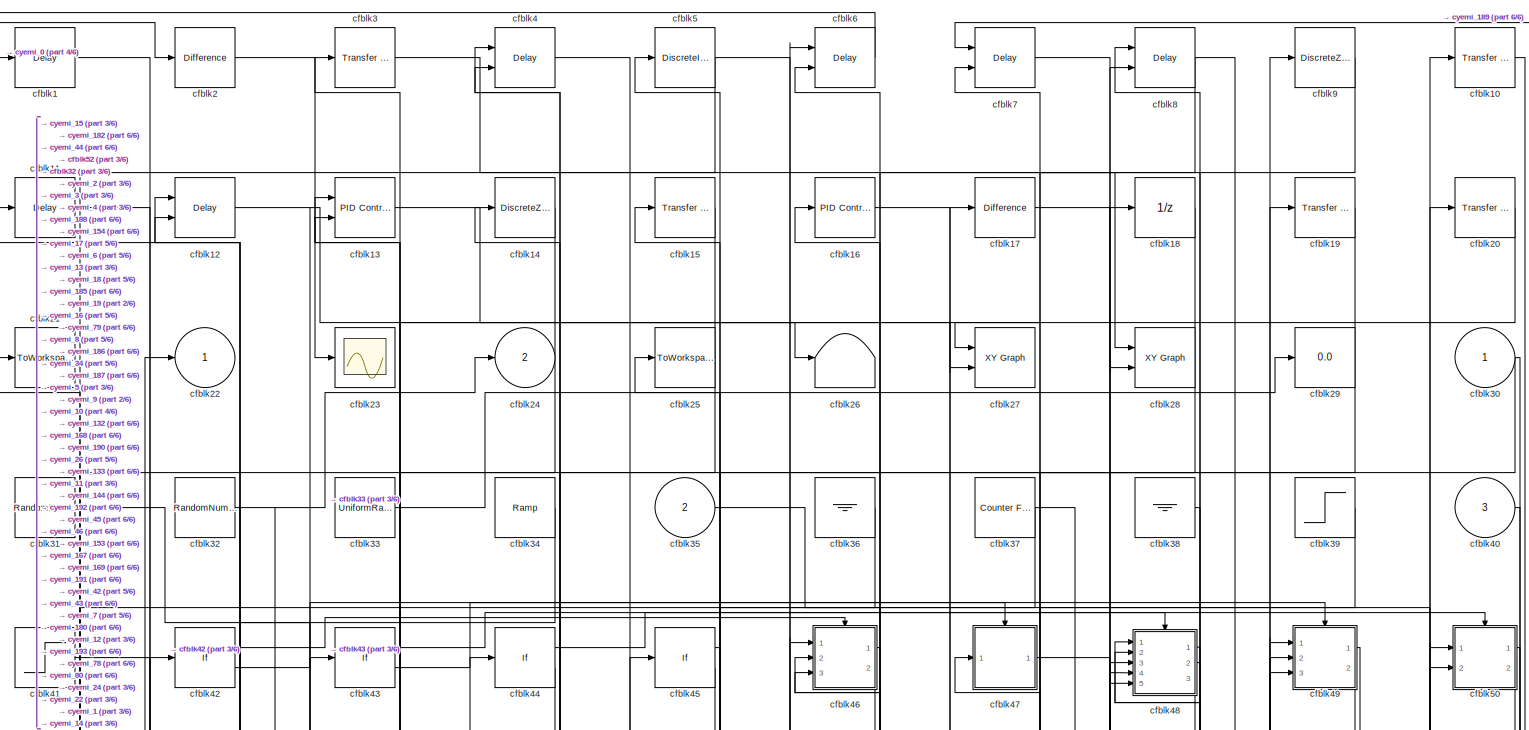
[diagram: root canvas - part 1/6, full width, top band]
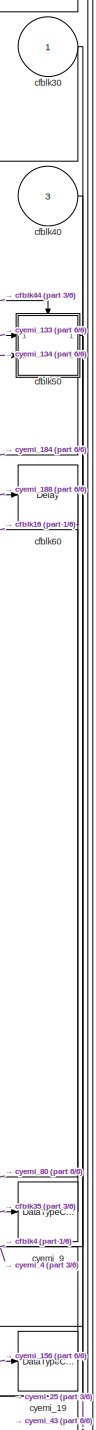
[diagram: root canvas - part 2/6, middle right region]
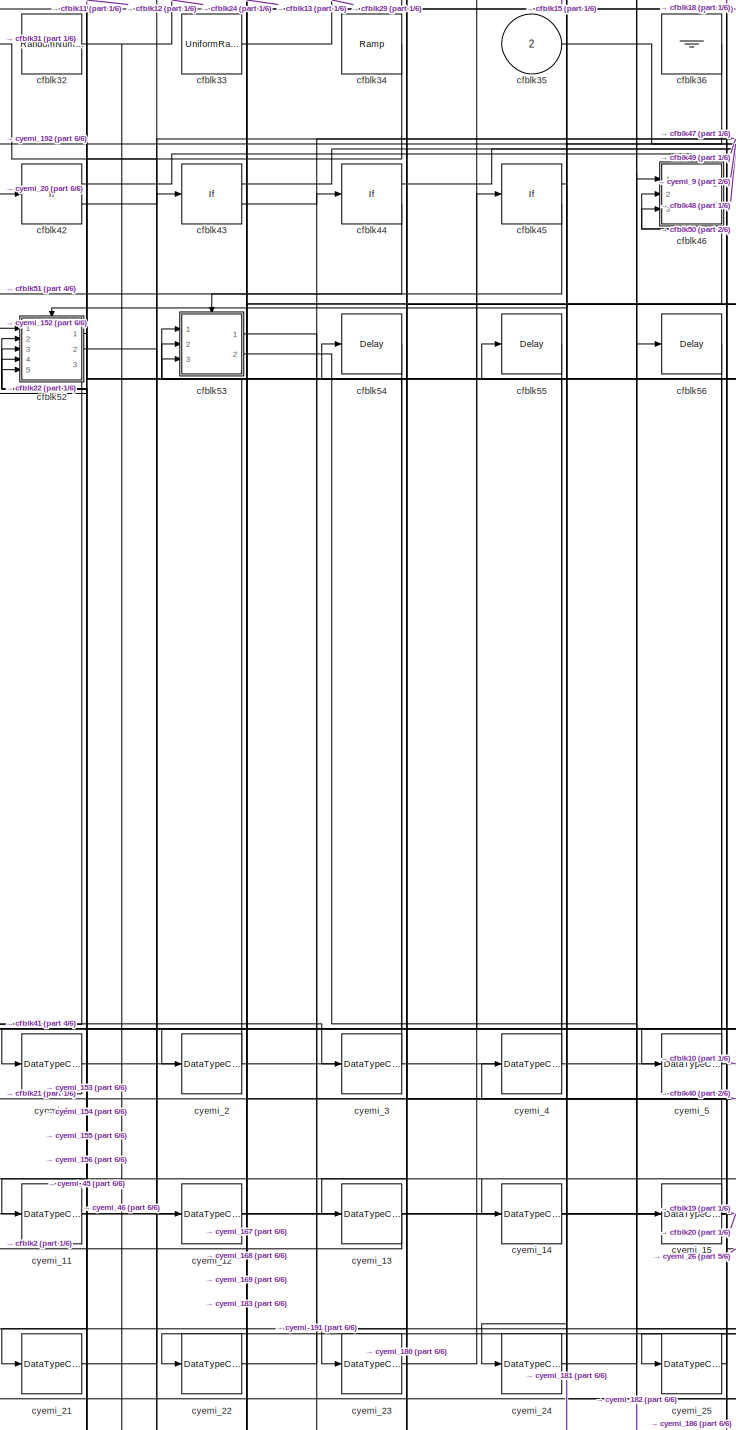
[diagram: root canvas - part 3/6, central region]
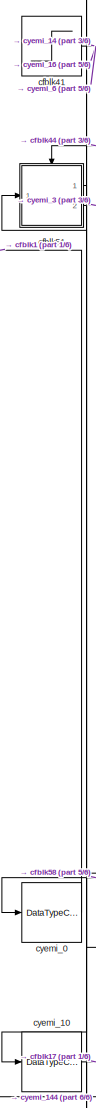
[diagram: root canvas - part 4/6, middle left region]
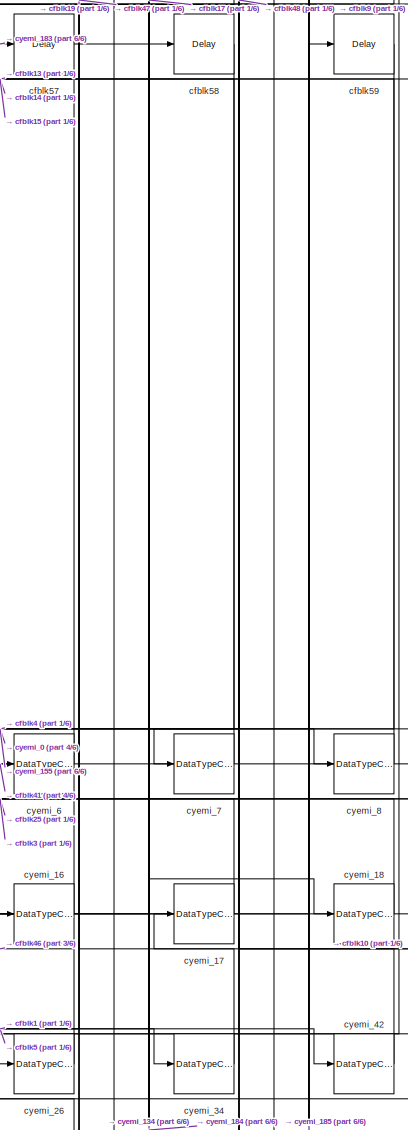
[diagram: root canvas - part 5/6, middle right region]
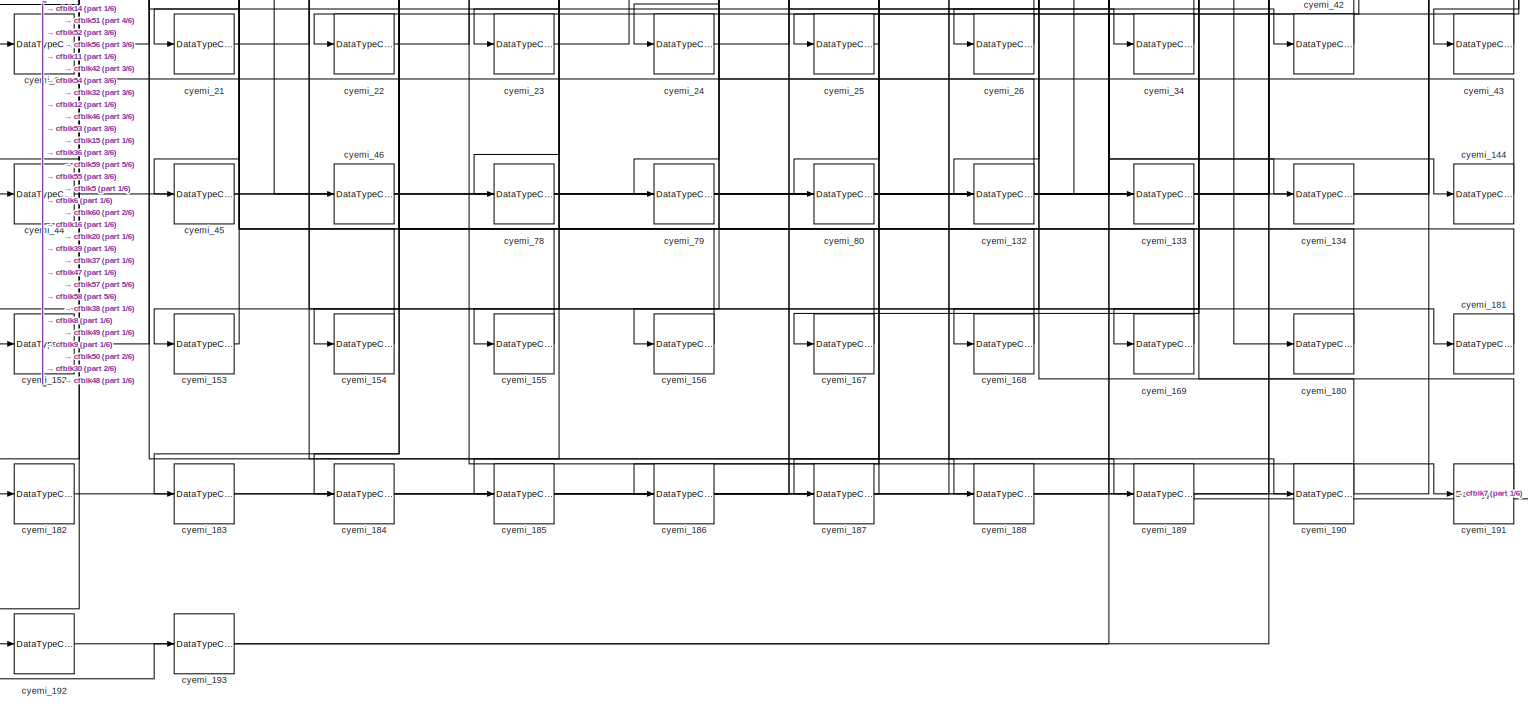
[diagram: root canvas - part 6/6, full width, bottom band]
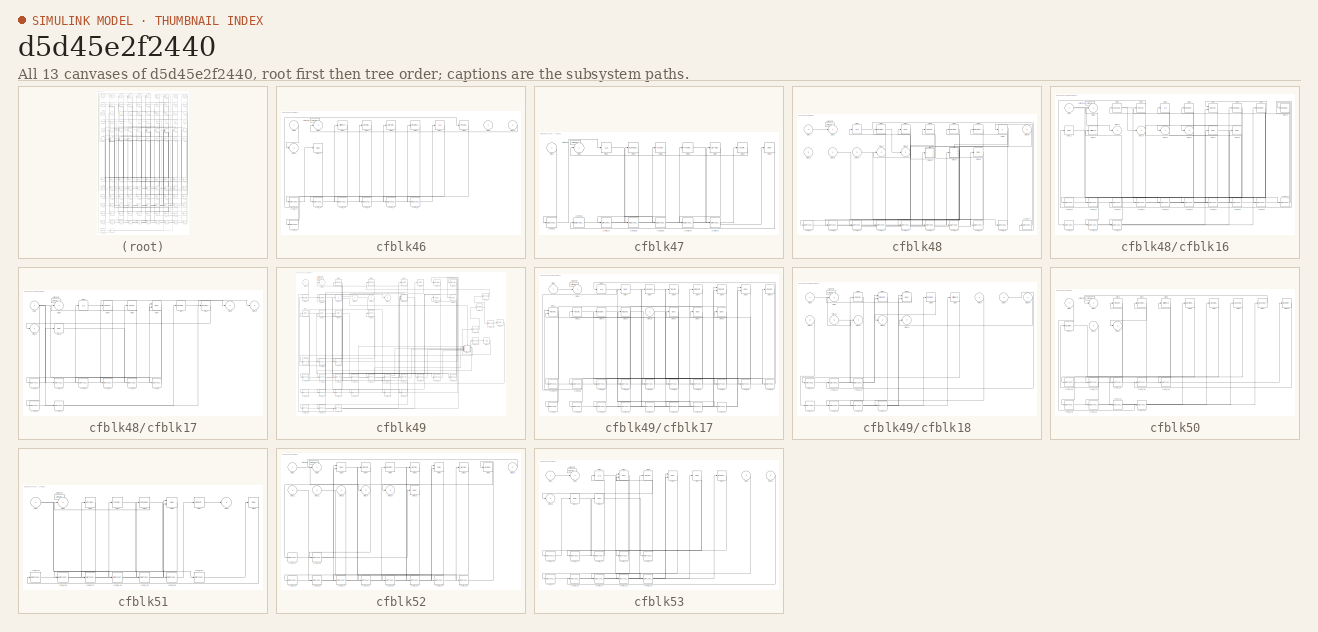
[diagram: thumbnail index - all 13 canvases of the model, root first then tree order]
MODEL slx_d5d45e2f2440
KIND model
CONFIG AbsTol = auto
CONFIG EnableMultiTasking = off
CONFIG FixedStep = auto
CONFIG MaxStep = auto
CONFIG MinStep = auto
CONFIG RelTol = 1e-3
CONFIG SampleTimeConstraint = Unconstrained
CONFIG Solver = VariableStepAuto
CONFIG SolverName = VariableStepAuto
CONFIG StartTime = 0.0
CONFIG StopTime = 10.0
BLOCK [Delay] cfblk1
  InputPortMap = u0
  Ports = [1, 1]
  SampleTime = 1
BLOCK [Reference] cfblk10  REF=simulink/Discrete/Transfer Fcn
Lead or Lag
  Ports = [1, 1]
  SourceBlock = simulink/Discrete/Transfer Fcn\nLead or Lag
  SourceProductBaseCode = SL
  SourceProductName = Simulink
  SourceType = Lead or Lag Compensator
BLOCK [Delay] cfblk11
  InputPortMap = u0
  Ports = [1, 1]
  SampleTime = 1
BLOCK [Delay] cfblk12
  DelayLengthSource = Input port
  InputPortMap = u0,p1
  Ports = [2, 1]
  SampleTime = 1
BLOCK [Reference] cfblk13  REF=simulink/Continuous/PID Controller (2DOF)
  Ports = [2, 1]
  SourceBlock = simulink/Continuous/PID Controller (2DOF)
  SourceProductBaseCode = SL
  SourceProductName = Simulink
  SourceType = PID 2dof
BLOCK [DiscreteZeroPole] cfblk14
  Gain = 1
  Poles = [0 0.5]
BLOCK [Reference] cfblk15  REF=simulink/Discrete/Transfer Fcn
Real Zero
  Ports = [1, 1]
  SourceBlock = simulink/Discrete/Transfer Fcn\nReal Zero
  SourceProductBaseCode = SL
  SourceProductName = Simulink
  SourceType = Transfer Fcn Real Zero
BLOCK [Reference] cfblk16  REF=simulink/Continuous/PID Controller
  Ports = [1, 1]
  SourceBlock = simulink/Continuous/PID Controller
  SourceProductBaseCode = SL
  SourceProductName = Simulink
  SourceType = PID 1dof
BLOCK [Reference] cfblk17  REF=simulink/Discrete/Difference
  Ports = [1, 1]
  SourceBlock = simulink/Discrete/Difference
  SourceProductBaseCode = SL
  SourceProductName = Simulink
  SourceType = Difference
BLOCK [UnitDelay] cfblk18
  InputProcessing = Elements as channels (sample based)
BLOCK [Reference] cfblk19  REF=simulink/Discrete/Transfer Fcn
Real Zero
  Ports = [1, 1]
  SourceBlock = simulink/Discrete/Transfer Fcn\nReal Zero
  SourceProductBaseCode = SL
  SourceProductName = Simulink
  SourceType = Transfer Fcn Real Zero
BLOCK [Reference] cfblk2  REF=simulink/Discrete/Difference
  Ports = [1, 1]
  SourceBlock = simulink/Discrete/Difference
  SourceProductBaseCode = SL
  SourceProductName = Simulink
  SourceType = Difference
BLOCK [Reference] cfblk20  REF=simulink/Discrete/Transfer Fcn
Real Zero
  Ports = [1, 1]
  SourceBlock = simulink/Discrete/Transfer Fcn\nReal Zero
  SourceProductBaseCode = SL
  SourceProductName = Simulink
  SourceType = Transfer Fcn Real Zero
BLOCK [ToWorkspace] cfblk21
  FixptAsFi = on
  MaxDataPoints = inf
  Ports = [1]
  SampleTime = -1
  Save2DSignal = 3-D array (concatenate along third dimension)
  SaveFormat = Timeseries
  VariableName = wntyoak
BLOCK [Outport] cfblk22
  IconDisplay = Port number
BLOCK [Scope] cfblk23
  Floating = off
  NumInputPorts = 1
  Ports = [1]
  ScopeSpecificationString = Simulink.scopes.TimeScopeBlockCfg('CurrentConfiguration', extmgr.ConfigurationSet(extmgr.Configuration('Core','General UI',true),extmgr.Configuration('Core','Source UI',true),extmgr.Configuration('Sources','WiredSimulink',true),extmgr.Configuration('Visuals','Time Domain',true),extmgr.Configuration('Tools','Plot Navigation',true),extmgr.Configuration('Tools','Measurements',true)),'Version','2018a'...<+1ch>
BLOCK [Outport] cfblk24
  IconDisplay = Port number
  Port = 2
BLOCK [ToWorkspace] cfblk25
  FixptAsFi = on
  MaxDataPoints = inf
  Ports = [1]
  SampleTime = -1
  Save2DSignal = 3-D array (concatenate along third dimension)
  SaveFormat = Timeseries
  VariableName = cbqlefq
BLOCK [Terminator] cfblk26
BLOCK [Reference] cfblk27  REF=simulink/Sinks/XY Graph
  Ports = [2]
  SourceBlock = simulink/Sinks/XY Graph
  SourceProductBaseCode = SL
  SourceProductName = Simulink
  SourceType = XY scope.
BLOCK [Reference] cfblk28  REF=simulink/Sinks/XY Graph
  Ports = [2]
  SourceBlock = simulink/Sinks/XY Graph
  SourceProductBaseCode = SL
  SourceProductName = Simulink
  SourceType = XY scope.
BLOCK [Display] cfblk29
  Decimation = 1
  Ports = [1]
BLOCK [Reference] cfblk3  REF=simulink/Discrete/Transfer Fcn
First Order
  Ports = [1, 1]
  SourceBlock = simulink/Discrete/Transfer Fcn\nFirst Order
  SourceProductBaseCode = SL
  SourceProductName = Simulink
  SourceType = First Order Transfer Fcn
BLOCK [Inport] cfblk30
  IconDisplay = Port number
BLOCK [RandomNumber] cfblk31
  SampleTime = 0.1
BLOCK [RandomNumber] cfblk32
  SampleTime = 0.1
BLOCK [UniformRandomNumber] cfblk33
  SampleTime = 0.1
BLOCK [Reference] cfblk34  REF=simulink/Sources/Ramp
  Ports = [0, 1]
  SourceBlock = simulink/Sources/Ramp
  SourceProductBaseCode = SL
  SourceProductName = Simulink
  SourceType = Ramp
BLOCK [Inport] cfblk35
  IconDisplay = Port number
  Port = 2
BLOCK [Ground] cfblk36
BLOCK [Reference] cfblk37  REF=simulink/Sources/Counter
Free-Running
  Ports = [0, 1]
  SourceBlock = simulink/Sources/Counter\nFree-Running
  SourceProductBaseCode = SL
  SourceProductName = Simulink
  SourceType = Counter Free-Running
BLOCK [Ground] cfblk38
BLOCK [Step] cfblk39
  After = 69
  SampleTime = 0
BLOCK [Delay] cfblk4
  InputPortMap = u0,e6
  Ports = [2, 1]
  SampleTime = 1
  ShowEnablePort = on
BLOCK [Inport] cfblk40
  IconDisplay = Port number
  Port = 3
BLOCK [Step] cfblk41
  After = 79
  SampleTime = 0
BLOCK [If] cfblk42
  Ports = [1, 2]
  SampleTime = 1
BLOCK [If] cfblk43
  Ports = [1, 2]
  SampleTime = 1
BLOCK [If] cfblk44
  Ports = [1, 2]
  SampleTime = 1
BLOCK [If] cfblk45
  Ports = [1, 2]
  SampleTime = 1
BLOCK [SubSystem] cfblk46
  Ports = [3, 2, 0, 0, 0, 0, 0, 1]
  RequestExecContextInheritance = off
  TreatAsAtomicUnit = on
BLOCK [ActionPort] cfblk46/Action Port
  ActionType = then
BLOCK [Inport] cfblk46/cfblk1
  IconDisplay = Port number
BLOCK [Inport] cfblk46/cfblk10
  IconDisplay = Port number
  Port = 3
BLOCK [Outport] cfblk46/cfblk11
  IconDisplay = Port number
  Port = 2
BLOCK [Delay] cfblk46/cfblk12
  InputPortMap = u0
  Ports = [1, 1]
BLOCK [Outport] cfblk46/cfblk2
  IconDisplay = Port number
BLOCK [Reference] cfblk46/cfblk3  REF=simulink/Discrete/Difference
  Ports = [1, 1]
  SourceBlock = simulink/Discrete/Difference
  SourceProductBaseCode = SL
  SourceProductName = Simulink
  SourceType = Difference
BLOCK [DiscreteIntegrator] cfblk46/cfblk4
  ICPrevOutput = DiscIntNeverNeededParam
  ICPrevScaledInput = DiscIntNeverNeededParam
  InitialConditionSetting = Auto
  OutDataTypeStr = double
  Ports = [1, 1]
  SampleTime = -1
BLOCK [Reference] cfblk46/cfblk5  REF=simulink/Continuous/PID Controller
  Ports = [1, 1]
  SourceBlock = simulink/Continuous/PID Controller
  SourceProductBaseCode = SL
  SourceProductName = Simulink
  SourceType = PID 1dof
BLOCK [DiscreteZeroPole] cfblk46/cfblk6
  Gain = 1
  Poles = [0 0.5]
  SampleTime = -1
BLOCK [UnitDelay] cfblk46/cfblk7
  InputProcessing = Elements as channels (sample based)
  SampleTime = -1
BLOCK [Reference] cfblk46/cfblk8  REF=simulink/Discrete/Transfer Fcn
First Order
  Ports = [1, 1]
  SourceBlock = simulink/Discrete/Transfer Fcn\nFirst Order
  SourceProductBaseCode = SL
  SourceProductName = Simulink
  SourceType = First Order Transfer Fcn
BLOCK [Inport] cfblk46/cfblk9
  IconDisplay = Port number
  Port = 2
BLOCK [DataTypeConversion] cfblk46/cyemi_27
  OutDataTypeStr = double
  RndMeth = Floor
  SaturateOnIntegerOverflow = off
BLOCK [DataTypeConversion] cfblk46/cyemi_28
  OutDataTypeStr = double
  RndMeth = Floor
  SaturateOnIntegerOverflow = off
BLOCK [DataTypeConversion] cfblk46/cyemi_29
  OutDataTypeStr = double
  RndMeth = Floor
  SaturateOnIntegerOverflow = off
BLOCK [DataTypeConversion] cfblk46/cyemi_30
  OutDataTypeStr = double
  RndMeth = Floor
  SaturateOnIntegerOverflow = off
BLOCK [DataTypeConversion] cfblk46/cyemi_31
  OutDataTypeStr = double
  RndMeth = Floor
  SaturateOnIntegerOverflow = off
BLOCK [DataTypeConversion] cfblk46/cyemi_32
  OutDataTypeStr = double
  RndMeth = Floor
  SaturateOnIntegerOverflow = off
BLOCK [DataTypeConversion] cfblk46/cyemi_33
  OutDataTypeStr = double
  RndMeth = Floor
  SaturateOnIntegerOverflow = off
BLOCK [SubSystem] cfblk47
  Ports = [1, 1, 0, 0, 0, 0, 0, 1]
  RequestExecContextInheritance = off
  TreatAsAtomicUnit = on
BLOCK [ActionPort] cfblk47/Action Port
  ActionType = else
BLOCK [Inport] cfblk47/cfblk1
  IconDisplay = Port number
BLOCK [Outport] cfblk47/cfblk2
  IconDisplay = Port number
BLOCK [UnitDelay] cfblk47/cfblk3
  InputProcessing = Elements as channels (sample based)
  SampleTime = -1
BLOCK [Reference] cfblk47/cfblk4  REF=simulink/Discrete/Tapped Delay
  Ports = [1, 1]
  SourceBlock = simulink/Discrete/Tapped Delay
  SourceProductBaseCode = SL
  SourceProductName = Simulink
  SourceType = Tapped Delay Line
BLOCK [Reference] cfblk47/cfblk5  REF=simulink/Discrete/Transfer Fcn
Real Zero
  Ports = [1, 1]
  SourceBlock = simulink/Discrete/Transfer Fcn\nReal Zero
  SourceProductBaseCode = SL
  SourceProductName = Simulink
  SourceType = Transfer Fcn Real Zero
BLOCK [Reference] cfblk47/cfblk6  REF=simulink/Discrete/Transfer Fcn
First Order
  Ports = [1, 1]
  SourceBlock = simulink/Discrete/Transfer Fcn\nFirst Order
  SourceProductBaseCode = SL
  SourceProductName = Simulink
  SourceType = First Order Transfer Fcn
BLOCK [DiscreteIntegrator] cfblk47/cfblk7
  ICPrevOutput = DiscIntNeverNeededParam
  ICPrevScaledInput = DiscIntNeverNeededParam
  InitialConditionSetting = Auto
  OutDataTypeStr = double
  Ports = [1, 1]
  SampleTime = -1
BLOCK [Reference] cfblk47/cfblk8  REF=simulink/Discrete/Transfer Fcn
Lead or Lag
  Ports = [1, 1]
  SourceBlock = simulink/Discrete/Transfer Fcn\nLead or Lag
  SourceProductBaseCode = SL
  SourceProductName = Simulink
  SourceType = Lead or Lag Compensator
BLOCK [Delay] cfblk47/cfblk9
  InputPortMap = u0
  Ports = [1, 1]
BLOCK [DataTypeConversion] cfblk47/cyemi_35
  OutDataTypeStr = double
  RndMeth = Floor
  SaturateOnIntegerOverflow = off
BLOCK [DataTypeConversion] cfblk47/cyemi_36
  OutDataTypeStr = double
  RndMeth = Floor
  SaturateOnIntegerOverflow = off
BLOCK [DataTypeConversion] cfblk47/cyemi_37
  OutDataTypeStr = double
  RndMeth = Floor
  SaturateOnIntegerOverflow = off
BLOCK [DataTypeConversion] cfblk47/cyemi_38
  OutDataTypeStr = double
  RndMeth = Floor
  SaturateOnIntegerOverflow = off
BLOCK [DataTypeConversion] cfblk47/cyemi_39
  OutDataTypeStr = double
  RndMeth = Floor
  SaturateOnIntegerOverflow = off
BLOCK [DataTypeConversion] cfblk47/cyemi_40
  OutDataTypeStr = double
  RndMeth = Floor
  SaturateOnIntegerOverflow = off
BLOCK [DataTypeConversion] cfblk47/cyemi_41
  OutDataTypeStr = double
  RndMeth = Floor
  SaturateOnIntegerOverflow = off
BLOCK [SubSystem] cfblk48
  Ports = [5, 3, 0, 0, 0, 0, 0, 1]
  RequestExecContextInheritance = off
  TreatAsAtomicUnit = on
BLOCK [ActionPort] cfblk48/Action Port
  ActionType = then
BLOCK [Inport] cfblk48/cfblk1
  IconDisplay = Port number
BLOCK [Inport] cfblk48/cfblk10
  IconDisplay = Port number
  Port = 2
BLOCK [Inport] cfblk48/cfblk11
  IconDisplay = Port number
  Port = 3
BLOCK [Inport] cfblk48/cfblk12
  IconDisplay = Port number
  Port = 4
BLOCK [Inport] cfblk48/cfblk13
  IconDisplay = Port number
  Port = 5
BLOCK [Outport] cfblk48/cfblk14
  IconDisplay = Port number
  Port = 2
BLOCK [Outport] cfblk48/cfblk15
  IconDisplay = Port number
  Port = 3
BLOCK [SubSystem] cfblk48/cfblk16
  Ports = [1, 5, 0, 0, 0, 0, 0, 1]
  RequestExecContextInheritance = off
  TreatAsAtomicUnit = on
BLOCK [ActionPort] cfblk48/cfblk16/Action Port
  ActionType = then
BLOCK [Inport] cfblk48/cfblk16/cfblk1
  IconDisplay = Port number
BLOCK [DiscreteZeroPole] cfblk48/cfblk16/cfblk10
  Gain = 1
  Poles = [0 0.5]
  SampleTime = -1
BLOCK [Delay] cfblk48/cfblk16/cfblk11
  InputPortMap = u0
  Ports = [1, 1]
BLOCK [Reference] cfblk48/cfblk16/cfblk12  REF=simulink/Discrete/Difference
  Ports = [1, 1]
  SourceBlock = simulink/Discrete/Difference
  SourceProductBaseCode = SL
  SourceProductName = Simulink
  SourceType = Difference
BLOCK [Outport] cfblk48/cfblk16/cfblk13
  IconDisplay = Port number
  Port = 2
BLOCK [Outport] cfblk48/cfblk16/cfblk14
  IconDisplay = Port number
  Port = 3
BLOCK [Outport] cfblk48/cfblk16/cfblk15
  IconDisplay = Port number
  Port = 4
BLOCK [Outport] cfblk48/cfblk16/cfblk16
  IconDisplay = Port number
  Port = 5
BLOCK [Delay] cfblk48/cfblk16/cfblk17
  InputPortMap = u0
  Ports = [1, 1]
BLOCK [Delay] cfblk48/cfblk16/cfblk18
  InputPortMap = u0
  Ports = [1, 1]
BLOCK [Outport] cfblk48/cfblk16/cfblk2
  IconDisplay = Port number
BLOCK [Reference] cfblk48/cfblk16/cfblk3  REF=simulink/Discrete/Tapped Delay
  Ports = [1, 1]
  SourceBlock = simulink/Discrete/Tapped Delay
  SourceProductBaseCode = SL
  SourceProductName = Simulink
  SourceType = Tapped Delay Line
BLOCK [Reference] cfblk48/cfblk16/cfblk4  REF=simulink/Discrete/Transfer Fcn
First Order
  Ports = [1, 1]
  SourceBlock = simulink/Discrete/Transfer Fcn\nFirst Order
  SourceProductBaseCode = SL
  SourceProductName = Simulink
  SourceType = First Order Transfer Fcn
BLOCK [UnitDelay] cfblk48/cfblk16/cfblk5
  InputProcessing = Elements as channels (sample based)
  SampleTime = -1
BLOCK [DiscreteTransferFcn] cfblk48/cfblk16/cfblk6
  InputPortMap = u0
  Ports = [1, 1]
BLOCK [Reference] cfblk48/cfblk16/cfblk7  REF=simulink/Continuous/PID Controller (2DOF)
  Ports = [2, 1]
  SourceBlock = simulink/Continuous/PID Controller (2DOF)
  SourceProductBaseCode = SL
  SourceProductName = Simulink
  SourceType = PID 2dof
BLOCK [DiscreteStateSpace] cfblk48/cfblk16/cfblk8
  SampleTime = -1
BLOCK [DiscreteFir] cfblk48/cfblk16/cfblk9
  InputPortMap = u0
  OutputPortMap = o0
  Ports = [1, 1]
BLOCK [DataTypeConversion] cfblk48/cfblk16/cyemi_48
  OutDataTypeStr = double
  RndMeth = Floor
  SaturateOnIntegerOverflow = off
BLOCK [DataTypeConversion] cfblk48/cfblk16/cyemi_49
  OutDataTypeStr = double
  RndMeth = Floor
  SaturateOnIntegerOverflow = off
BLOCK [DataTypeConversion] cfblk48/cfblk16/cyemi_50
  OutDataTypeStr = double
  RndMeth = Floor
  SaturateOnIntegerOverflow = off
BLOCK [DataTypeConversion] cfblk48/cfblk16/cyemi_51
  OutDataTypeStr = double
  RndMeth = Floor
  SaturateOnIntegerOverflow = off
BLOCK [DataTypeConversion] cfblk48/cfblk16/cyemi_52
  OutDataTypeStr = double
  RndMeth = Floor
  SaturateOnIntegerOverflow = off
BLOCK [DataTypeConversion] cfblk48/cfblk16/cyemi_53
  OutDataTypeStr = double
  RndMeth = Floor
  SaturateOnIntegerOverflow = off
BLOCK [DataTypeConversion] cfblk48/cfblk16/cyemi_54
  OutDataTypeStr = double
  RndMeth = Floor
  SaturateOnIntegerOverflow = off
BLOCK [DataTypeConversion] cfblk48/cfblk16/cyemi_55
  OutDataTypeStr = double
  RndMeth = Floor
  SaturateOnIntegerOverflow = off
BLOCK [DataTypeConversion] cfblk48/cfblk16/cyemi_56
  OutDataTypeStr = double
  RndMeth = Floor
  SaturateOnIntegerOverflow = off
BLOCK [DataTypeConversion] cfblk48/cfblk16/cyemi_57
  OutDataTypeStr = double
  RndMeth = Floor
  SaturateOnIntegerOverflow = off
BLOCK [DataTypeConversion] cfblk48/cfblk16/cyemi_58
  OutDataTypeStr = double
  RndMeth = Floor
  SaturateOnIntegerOverflow = off
BLOCK [DataTypeConversion] cfblk48/cfblk16/cyemi_59
  OutDataTypeStr = double
  RndMeth = Floor
  SaturateOnIntegerOverflow = off
BLOCK [DataTypeConversion] cfblk48/cfblk16/cyemi_60
  OutDataTypeStr = double
  RndMeth = Floor
  SaturateOnIntegerOverflow = off
BLOCK [SubSystem] cfblk48/cfblk17
  Ports = [1, 4, 0, 0, 0, 0, 0, 1]
  RequestExecContextInheritance = off
  TreatAsAtomicUnit = on
BLOCK [ActionPort] cfblk48/cfblk17/Action Port
  ActionType = else
BLOCK [Inport] cfblk48/cfblk17/cfblk1
  IconDisplay = Port number
BLOCK [Outport] cfblk48/cfblk17/cfblk10
  IconDisplay = Port number
  Port = 3
BLOCK [Outport] cfblk48/cfblk17/cfblk11
  IconDisplay = Port number
  Port = 4
BLOCK [Delay] cfblk48/cfblk17/cfblk12
  InputPortMap = u0
  Ports = [1, 1]
BLOCK [Outport] cfblk48/cfblk17/cfblk2
  IconDisplay = Port number
BLOCK [UnitDelay] cfblk48/cfblk17/cfblk3
  InputProcessing = Elements as channels (sample based)
  SampleTime = -1
BLOCK [Reference] cfblk48/cfblk17/cfblk4  REF=simulink/Continuous/PID Controller
  Ports = [1, 1]
  SourceBlock = simulink/Continuous/PID Controller
  SourceProductBaseCode = SL
  SourceProductName = Simulink
  SourceType = PID 1dof
BLOCK [Reference] cfblk48/cfblk17/cfblk5  REF=simulink/Discrete/Transfer Fcn
Real Zero
  Ports = [1, 1]
  SourceBlock = simulink/Discrete/Transfer Fcn\nReal Zero
  SourceProductBaseCode = SL
  SourceProductName = Simulink
  SourceType = Transfer Fcn Real Zero
BLOCK [Delay] cfblk48/cfblk17/cfblk6
  DelayLengthSource = Input port
  InputPortMap = u0,p1
  Ports = [2, 1]
BLOCK [DiscreteZeroPole] cfblk48/cfblk17/cfblk7
  Gain = 1
  Poles = [0 0.5]
  SampleTime = -1
BLOCK [DiscreteFir] cfblk48/cfblk17/cfblk8
  InputPortMap = u0
  OutputPortMap = o0
  Ports = [1, 1]
BLOCK [Outport] cfblk48/cfblk17/cfblk9
  IconDisplay = Port number
  Port = 2
BLOCK [DataTypeConversion] cfblk48/cfblk17/cyemi_62
  OutDataTypeStr = double
  RndMeth = Floor
  SaturateOnIntegerOverflow = off
BLOCK [DataTypeConversion] cfblk48/cfblk17/cyemi_63
  OutDataTypeStr = double
  RndMeth = Floor
  SaturateOnIntegerOverflow = off
BLOCK [DataTypeConversion] cfblk48/cfblk17/cyemi_64
  OutDataTypeStr = double
  RndMeth = Floor
  SaturateOnIntegerOverflow = off
BLOCK [DataTypeConversion] cfblk48/cfblk17/cyemi_65
  OutDataTypeStr = double
  RndMeth = Floor
  SaturateOnIntegerOverflow = off
BLOCK [DataTypeConversion] cfblk48/cfblk17/cyemi_66
  OutDataTypeStr = double
  RndMeth = Floor
  SaturateOnIntegerOverflow = off
BLOCK [DataTypeConversion] cfblk48/cfblk17/cyemi_67
  OutDataTypeStr = double
  RndMeth = Floor
  SaturateOnIntegerOverflow = off
BLOCK [DataTypeConversion] cfblk48/cfblk17/cyemi_68
  OutDataTypeStr = double
  RndMeth = Floor
  SaturateOnIntegerOverflow = off
BLOCK [DataTypeConversion] cfblk48/cfblk17/cyemi_69
  OutDataTypeStr = double
  RndMeth = Floor
  SaturateOnIntegerOverflow = off
BLOCK [Delay] cfblk48/cfblk18
  InputPortMap = u0
  Ports = [1, 1]
BLOCK [Outport] cfblk48/cfblk2
  IconDisplay = Port number
BLOCK [UnitDelay] cfblk48/cfblk3
  InputProcessing = Elements as channels (sample based)
  SampleTime = -1
BLOCK [DiscreteFilter] cfblk48/cfblk4
  InputPortMap = u0
  Ports = [1, 1]
BLOCK [Delay] cfblk48/cfblk5
  InputPortMap = u0
  Ports = [1, 1]
BLOCK [Reference] cfblk48/cfblk6  REF=simulink/Discrete/Transfer Fcn
Lead or Lag
  Ports = [1, 1]
  SourceBlock = simulink/Discrete/Transfer Fcn\nLead or Lag
  SourceProductBaseCode = SL
  SourceProductName = Simulink
  SourceType = Lead or Lag Compensator
BLOCK [DiscreteFir] cfblk48/cfblk7
  InputPortMap = u0
  OutputPortMap = o0
  Ports = [1, 1]
BLOCK [DiscreteZeroPole] cfblk48/cfblk8
  Gain = 1
  Poles = [0 0.5]
  SampleTime = -1
BLOCK [If] cfblk48/cfblk9
  Ports = [1, 2]
  SampleTime = 1
BLOCK [DataTypeConversion] cfblk48/cyemi_47
  OutDataTypeStr = double
  RndMeth = Floor
  SaturateOnIntegerOverflow = off
BLOCK [DataTypeConversion] cfblk48/cyemi_61
  OutDataTypeStr = double
  RndMeth = Floor
  SaturateOnIntegerOverflow = off
BLOCK [DataTypeConversion] cfblk48/cyemi_70
  OutDataTypeStr = double
  RndMeth = Floor
  SaturateOnIntegerOverflow = off
BLOCK [DataTypeConversion] cfblk48/cyemi_71
  OutDataTypeStr = double
  RndMeth = Floor
  SaturateOnIntegerOverflow = off
BLOCK [DataTypeConversion] cfblk48/cyemi_72
  OutDataTypeStr = double
  RndMeth = Floor
  SaturateOnIntegerOverflow = off
BLOCK [DataTypeConversion] cfblk48/cyemi_73
  OutDataTypeStr = double
  RndMeth = Floor
  SaturateOnIntegerOverflow = off
BLOCK [DataTypeConversion] cfblk48/cyemi_74
  OutDataTypeStr = double
  RndMeth = Floor
  SaturateOnIntegerOverflow = off
BLOCK [DataTypeConversion] cfblk48/cyemi_75
  OutDataTypeStr = double
  RndMeth = Floor
  SaturateOnIntegerOverflow = off
BLOCK [DataTypeConversion] cfblk48/cyemi_76
  OutDataTypeStr = double
  RndMeth = Floor
  SaturateOnIntegerOverflow = off
BLOCK [DataTypeConversion] cfblk48/cyemi_77
  OutDataTypeStr = double
  RndMeth = Floor
  SaturateOnIntegerOverflow = off
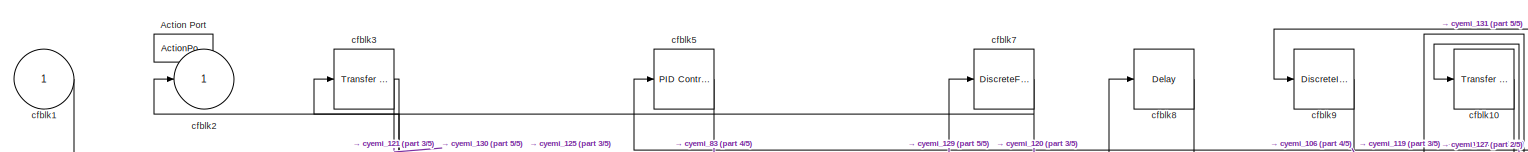
[diagram: cfblk49 - part 1/5, full width, top band]
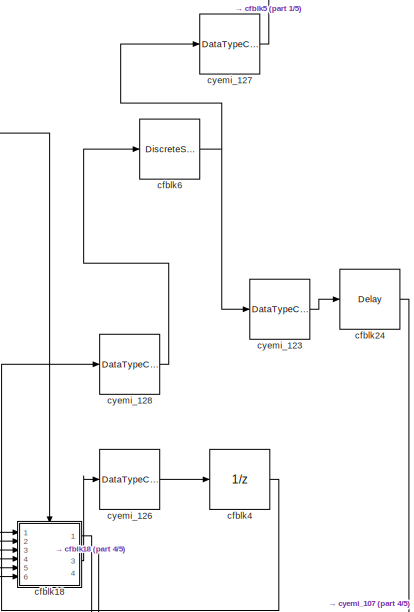
[diagram: cfblk49 - part 2/5, middle right region]
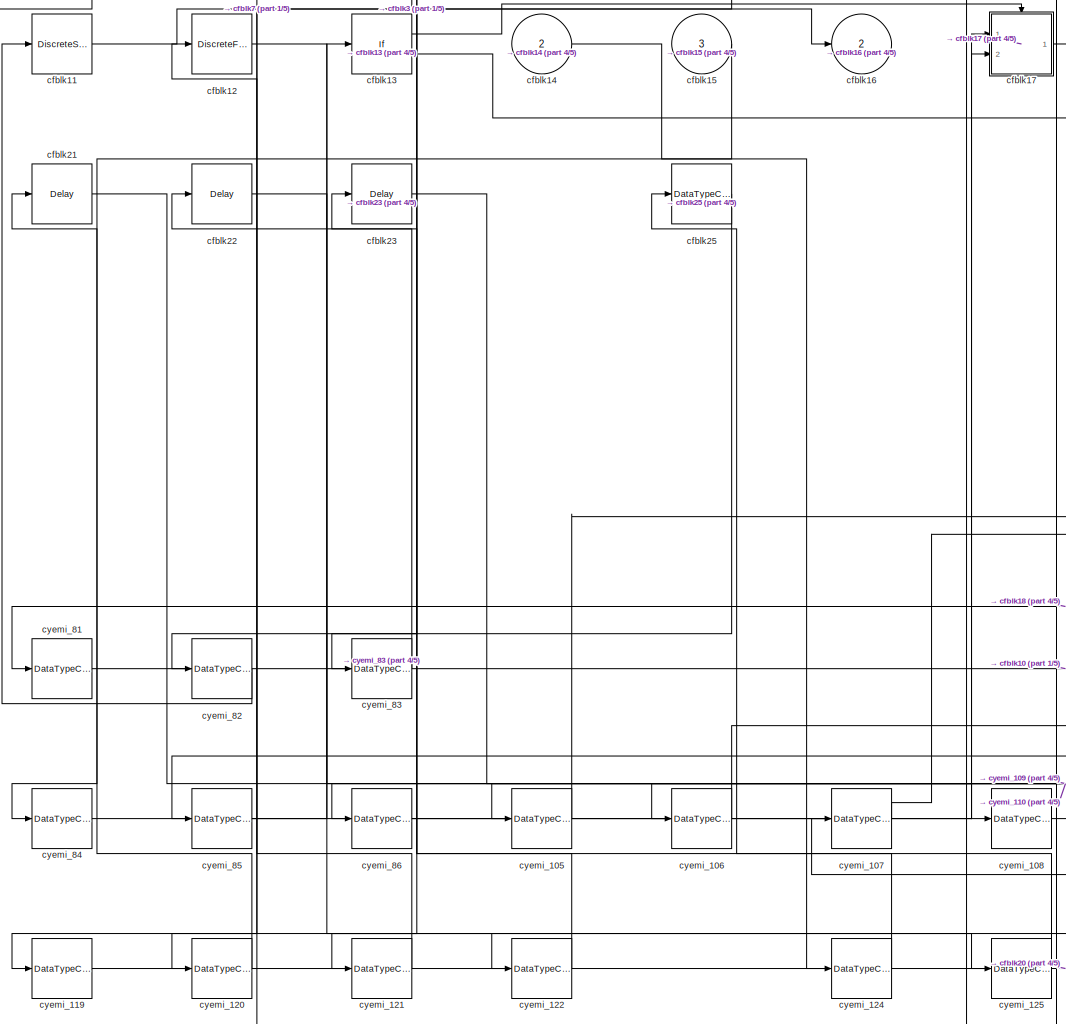
[diagram: cfblk49 - part 3/5, left side, full height]
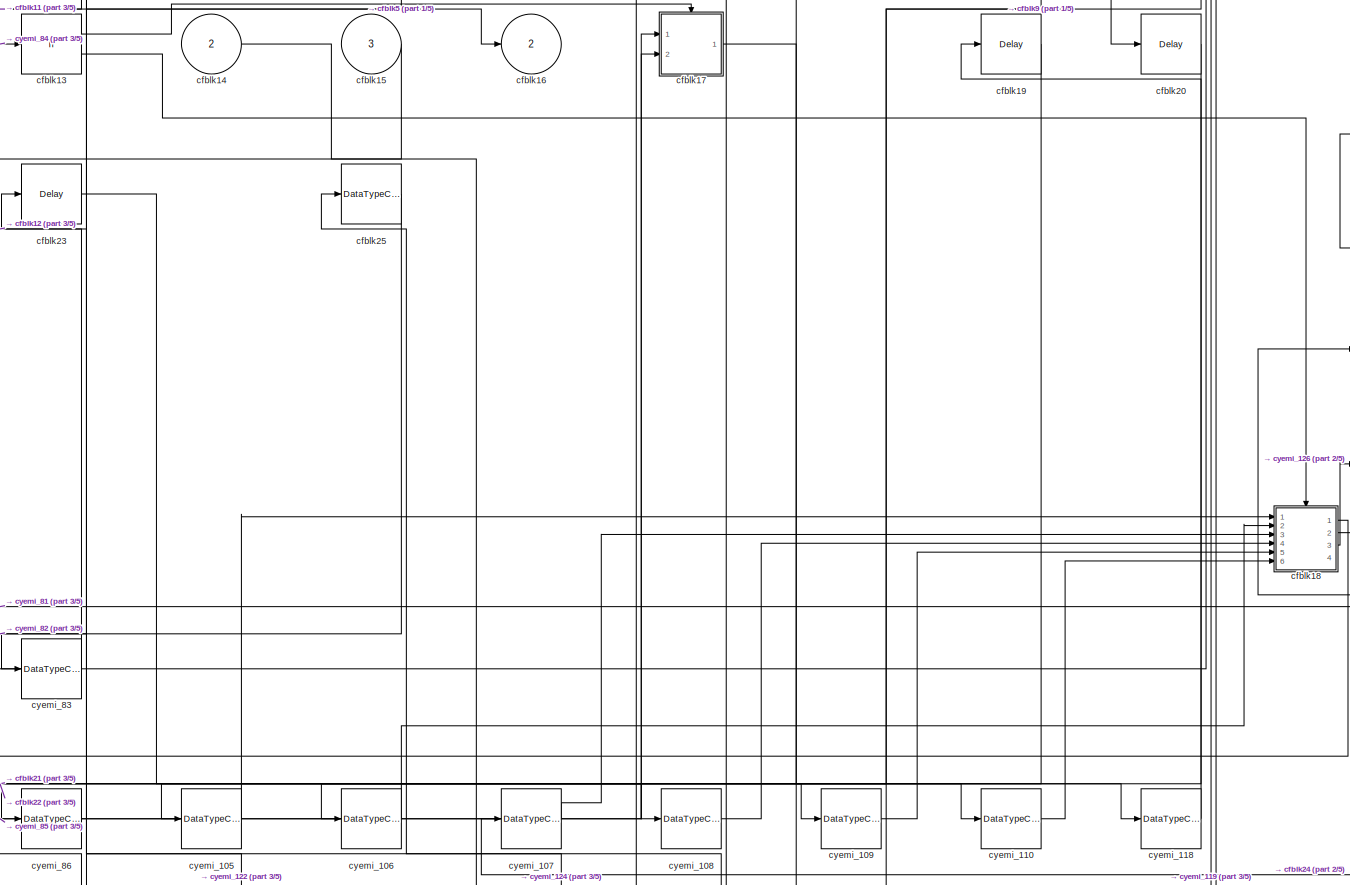
[diagram: cfblk49 - part 4/5, central region]
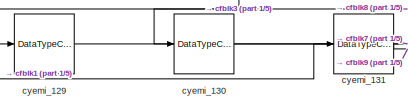
[diagram: cfblk49 - part 5/5, bottom left region]
BLOCK [SubSystem] cfblk49
  Ports = [3, 2, 0, 0, 0, 0, 0, 1]
  RequestExecContextInheritance = off
  TreatAsAtomicUnit = on
BLOCK [ActionPort] cfblk49/Action Port
  ActionType = else
BLOCK [Inport] cfblk49/cfblk1
  IconDisplay = Port number
BLOCK [Reference] cfblk49/cfblk10  REF=simulink/Discrete/Transfer Fcn
Real Zero
  Ports = [1, 1]
  SourceBlock = simulink/Discrete/Transfer Fcn\nReal Zero
  SourceProductBaseCode = SL
  SourceProductName = Simulink
  SourceType = Transfer Fcn Real Zero
BLOCK [DiscreteStateSpace] cfblk49/cfblk11
  SampleTime = -1
BLOCK [DiscreteFir] cfblk49/cfblk12
  InputPortMap = u0
  OutputPortMap = o0
  Ports = [1, 1]
BLOCK [If] cfblk49/cfblk13
  Ports = [1, 2]
  SampleTime = 1
BLOCK [Inport] cfblk49/cfblk14
  IconDisplay = Port number
  Port = 2
BLOCK [Inport] cfblk49/cfblk15
  IconDisplay = Port number
  Port = 3
BLOCK [Outport] cfblk49/cfblk16
  IconDisplay = Port number
  Port = 2
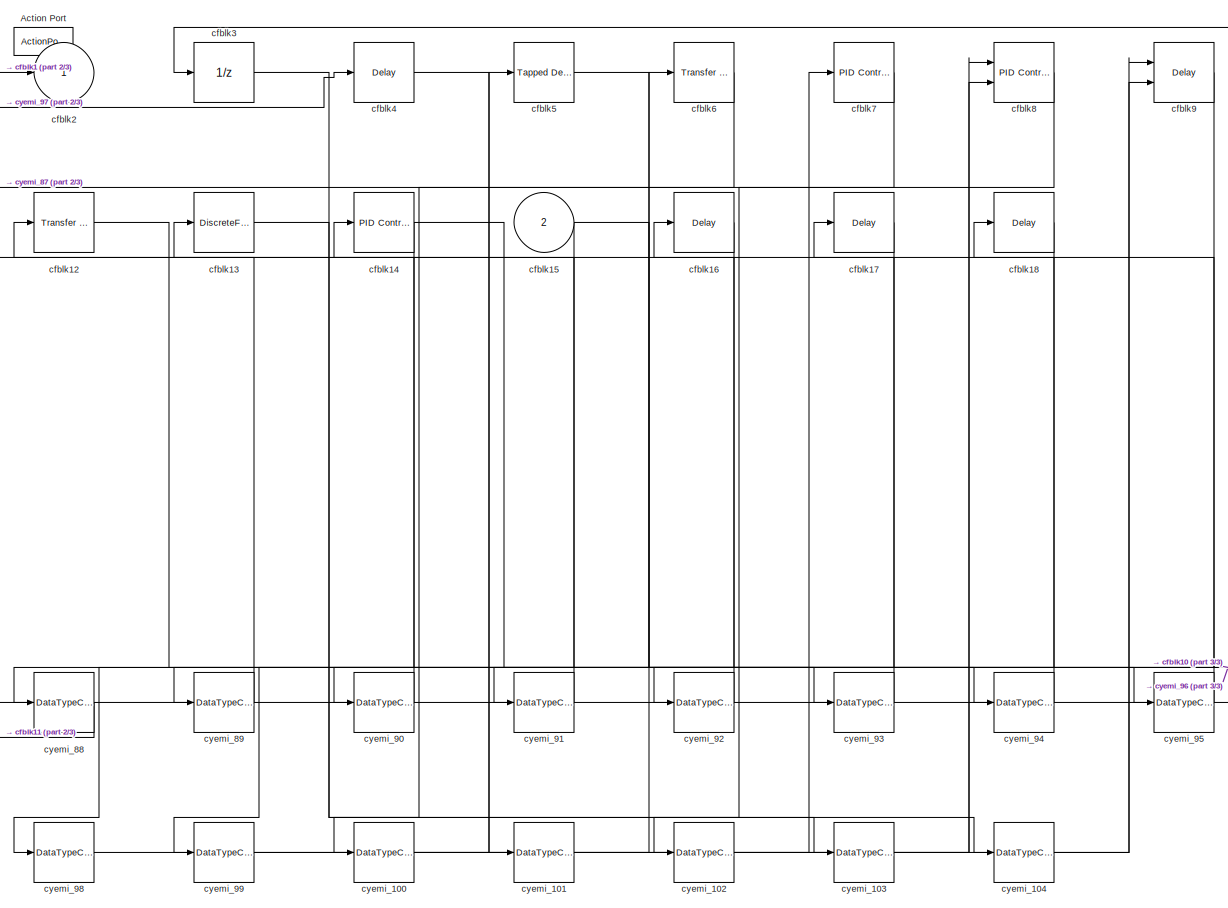
[diagram: cfblk49/cfblk17 - part 1/3, most of the canvas]
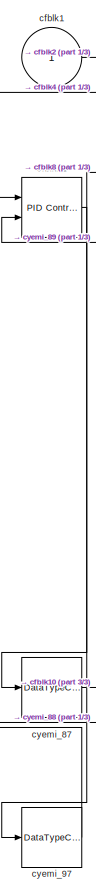
[diagram: cfblk49/cfblk17 - part 2/3, left side, full height]
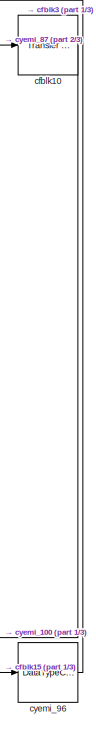
[diagram: cfblk49/cfblk17 - part 3/3, right side, full height]
BLOCK [SubSystem] cfblk49/cfblk17
  Ports = [2, 1, 0, 0, 0, 0, 0, 1]
  RequestExecContextInheritance = off
  TreatAsAtomicUnit = on
BLOCK [ActionPort] cfblk49/cfblk17/Action Port
  ActionType = then
BLOCK [Inport] cfblk49/cfblk17/cfblk1
  IconDisplay = Port number
BLOCK [Reference] cfblk49/cfblk17/cfblk10  REF=simulink/Discrete/Transfer Fcn
Real Zero
  Ports = [1, 1]
  SourceBlock = simulink/Discrete/Transfer Fcn\nReal Zero
  SourceProductBaseCode = SL
  SourceProductName = Simulink
  SourceType = Transfer Fcn Real Zero
BLOCK [Reference] cfblk49/cfblk17/cfblk11  REF=simulink/Continuous/PID Controller (2DOF)
  Ports = [2, 1]
  SourceBlock = simulink/Continuous/PID Controller (2DOF)
  SourceProductBaseCode = SL
  SourceProductName = Simulink
  SourceType = PID 2dof
BLOCK [Reference] cfblk49/cfblk17/cfblk12  REF=simulink/Discrete/Transfer Fcn
Real Zero
  Ports = [1, 1]
  SourceBlock = simulink/Discrete/Transfer Fcn\nReal Zero
  SourceProductBaseCode = SL
  SourceProductName = Simulink
  SourceType = Transfer Fcn Real Zero
BLOCK [DiscreteFilter] cfblk49/cfblk17/cfblk13
  InputPortMap = u0
  Ports = [1, 1]
BLOCK [Reference] cfblk49/cfblk17/cfblk14  REF=simulink/Continuous/PID Controller
  Ports = [1, 1]
  SourceBlock = simulink/Continuous/PID Controller
  SourceProductBaseCode = SL
  SourceProductName = Simulink
  SourceType = PID 1dof
BLOCK [Inport] cfblk49/cfblk17/cfblk15
  IconDisplay = Port number
  Port = 2
BLOCK [Delay] cfblk49/cfblk17/cfblk16
  InputPortMap = u0
  Ports = [1, 1]
BLOCK [Delay] cfblk49/cfblk17/cfblk17
  InputPortMap = u0
  Ports = [1, 1]
BLOCK [Delay] cfblk49/cfblk17/cfblk18
  InputPortMap = u0
  Ports = [1, 1]
BLOCK [Outport] cfblk49/cfblk17/cfblk2
  IconDisplay = Port number
BLOCK [UnitDelay] cfblk49/cfblk17/cfblk3
  InputProcessing = Elements as channels (sample based)
  SampleTime = -1
BLOCK [Delay] cfblk49/cfblk17/cfblk4
  InputPortMap = u0
  Ports = [1, 1]
BLOCK [Reference] cfblk49/cfblk17/cfblk5  REF=simulink/Discrete/Tapped Delay
  Ports = [1, 1]
  SourceBlock = simulink/Discrete/Tapped Delay
  SourceProductBaseCode = SL
  SourceProductName = Simulink
  SourceType = Tapped Delay Line
BLOCK [Reference] cfblk49/cfblk17/cfblk6  REF=simulink/Discrete/Transfer Fcn
Real Zero
  Ports = [1, 1]
  SourceBlock = simulink/Discrete/Transfer Fcn\nReal Zero
  SourceProductBaseCode = SL
  SourceProductName = Simulink
  SourceType = Transfer Fcn Real Zero
BLOCK [Reference] cfblk49/cfblk17/cfblk7  REF=simulink/Continuous/PID Controller
  Ports = [1, 1]
  SourceBlock = simulink/Continuous/PID Controller
  SourceProductBaseCode = SL
  SourceProductName = Simulink
  SourceType = PID 1dof
BLOCK [Reference] cfblk49/cfblk17/cfblk8  REF=simulink/Continuous/PID Controller (2DOF)
  Ports = [2, 1]
  SourceBlock = simulink/Continuous/PID Controller (2DOF)
  SourceProductBaseCode = SL
  SourceProductName = Simulink
  SourceType = PID 2dof
BLOCK [Delay] cfblk49/cfblk17/cfblk9
  DelayLengthSource = Input port
  InputPortMap = u0,p1
  Ports = [2, 1]
BLOCK [DataTypeConversion] cfblk49/cfblk17/cyemi_100
  OutDataTypeStr = double
  RndMeth = Floor
  SaturateOnIntegerOverflow = off
BLOCK [DataTypeConversion] cfblk49/cfblk17/cyemi_101
  OutDataTypeStr = double
  RndMeth = Floor
  SaturateOnIntegerOverflow = off
BLOCK [DataTypeConversion] cfblk49/cfblk17/cyemi_102
  OutDataTypeStr = double
  RndMeth = Floor
  SaturateOnIntegerOverflow = off
BLOCK [DataTypeConversion] cfblk49/cfblk17/cyemi_103
  OutDataTypeStr = double
  RndMeth = Floor
  SaturateOnIntegerOverflow = off
BLOCK [DataTypeConversion] cfblk49/cfblk17/cyemi_104
  OutDataTypeStr = double
  RndMeth = Floor
  SaturateOnIntegerOverflow = off
BLOCK [DataTypeConversion] cfblk49/cfblk17/cyemi_87
  OutDataTypeStr = double
  RndMeth = Floor
  SaturateOnIntegerOverflow = off
BLOCK [DataTypeConversion] cfblk49/cfblk17/cyemi_88
  OutDataTypeStr = double
  RndMeth = Floor
  SaturateOnIntegerOverflow = off
BLOCK [DataTypeConversion] cfblk49/cfblk17/cyemi_89
  OutDataTypeStr = double
  RndMeth = Floor
  SaturateOnIntegerOverflow = off
BLOCK [DataTypeConversion] cfblk49/cfblk17/cyemi_90
  OutDataTypeStr = double
  RndMeth = Floor
  SaturateOnIntegerOverflow = off
BLOCK [DataTypeConversion] cfblk49/cfblk17/cyemi_91
  OutDataTypeStr = double
  RndMeth = Floor
  SaturateOnIntegerOverflow = off
BLOCK [DataTypeConversion] cfblk49/cfblk17/cyemi_92
  OutDataTypeStr = double
  RndMeth = Floor
  SaturateOnIntegerOverflow = off
BLOCK [DataTypeConversion] cfblk49/cfblk17/cyemi_93
  OutDataTypeStr = double
  RndMeth = Floor
  SaturateOnIntegerOverflow = off
BLOCK [DataTypeConversion] cfblk49/cfblk17/cyemi_94
  OutDataTypeStr = double
  RndMeth = Floor
  SaturateOnIntegerOverflow = off
BLOCK [DataTypeConversion] cfblk49/cfblk17/cyemi_95
  OutDataTypeStr = double
  RndMeth = Floor
  SaturateOnIntegerOverflow = off
BLOCK [DataTypeConversion] cfblk49/cfblk17/cyemi_96
  OutDataTypeStr = double
  RndMeth = Floor
  SaturateOnIntegerOverflow = off
BLOCK [DataTypeConversion] cfblk49/cfblk17/cyemi_97
  OutDataTypeStr = double
  RndMeth = Floor
  SaturateOnIntegerOverflow = off
BLOCK [DataTypeConversion] cfblk49/cfblk17/cyemi_98
  OutDataTypeStr = double
  RndMeth = Floor
  SaturateOnIntegerOverflow = off
BLOCK [DataTypeConversion] cfblk49/cfblk17/cyemi_99
  OutDataTypeStr = double
  RndMeth = Floor
  SaturateOnIntegerOverflow = off
BLOCK [SubSystem] cfblk49/cfblk18
  Ports = [6, 4, 0, 0, 0, 0, 0, 1]
  RequestExecContextInheritance = off
  TreatAsAtomicUnit = on
BLOCK [ActionPort] cfblk49/cfblk18/Action Port
  ActionType = else
BLOCK [Inport] cfblk49/cfblk18/cfblk1
  IconDisplay = Port number
BLOCK [Inport] cfblk49/cfblk18/cfblk10
  IconDisplay = Port number
  Port = 4
BLOCK [Inport] cfblk49/cfblk18/cfblk11
  IconDisplay = Port number
  Port = 5
BLOCK [Inport] cfblk49/cfblk18/cfblk12
  IconDisplay = Port number
  Port = 6
BLOCK [Outport] cfblk49/cfblk18/cfblk13
  IconDisplay = Port number
  Port = 2
BLOCK [Outport] cfblk49/cfblk18/cfblk14
  IconDisplay = Port number
  Port = 3
BLOCK [Outport] cfblk49/cfblk18/cfblk15
  IconDisplay = Port number
  Port = 4
BLOCK [Outport] cfblk49/cfblk18/cfblk2
  IconDisplay = Port number
BLOCK [Reference] cfblk49/cfblk18/cfblk3  REF=simulink/Discrete/Transfer Fcn
Lead or Lag
  Ports = [1, 1]
  SourceBlock = simulink/Discrete/Transfer Fcn\nLead or Lag
  SourceProductBaseCode = SL
  SourceProductName = Simulink
  SourceType = Lead or Lag Compensator
BLOCK [Reference] cfblk49/cfblk18/cfblk4  REF=simulink/Continuous/PID Controller (2DOF)
  Ports = [2, 1]
  SourceBlock = simulink/Continuous/PID Controller (2DOF)
  SourceProductBaseCode = SL
  SourceProductName = Simulink
  SourceType = PID 2dof
BLOCK [Delay] cfblk49/cfblk18/cfblk5
  DelayLengthSource = Input port
  InputPortMap = u0,p1
  Ports = [2, 1]
BLOCK [DiscreteFir] cfblk49/cfblk18/cfblk6
  InputPortMap = u0
  OutputPortMap = o0
  Ports = [1, 1]
BLOCK [Reference] cfblk49/cfblk18/cfblk7  REF=simulink/Discrete/Difference
  Ports = [1, 1]
  SourceBlock = simulink/Discrete/Difference
  SourceProductBaseCode = SL
  SourceProductName = Simulink
  SourceType = Difference
BLOCK [Inport] cfblk49/cfblk18/cfblk8
  IconDisplay = Port number
  Port = 2
BLOCK [Inport] cfblk49/cfblk18/cfblk9
  IconDisplay = Port number
  Port = 3
BLOCK [DataTypeConversion] cfblk49/cfblk18/cyemi_111
  OutDataTypeStr = double
  RndMeth = Floor
  SaturateOnIntegerOverflow = off
BLOCK [DataTypeConversion] cfblk49/cfblk18/cyemi_112
  OutDataTypeStr = double
  RndMeth = Floor
  SaturateOnIntegerOverflow = off
BLOCK [DataTypeConversion] cfblk49/cfblk18/cyemi_113
  OutDataTypeStr = double
  RndMeth = Floor
  SaturateOnIntegerOverflow = off
BLOCK [DataTypeConversion] cfblk49/cfblk18/cyemi_114
  OutDataTypeStr = double
  RndMeth = Floor
  SaturateOnIntegerOverflow = off
BLOCK [DataTypeConversion] cfblk49/cfblk18/cyemi_115
  OutDataTypeStr = double
  RndMeth = Floor
  SaturateOnIntegerOverflow = off
BLOCK [DataTypeConversion] cfblk49/cfblk18/cyemi_116
  OutDataTypeStr = double
  RndMeth = Floor
  SaturateOnIntegerOverflow = off
BLOCK [DataTypeConversion] cfblk49/cfblk18/cyemi_117
  OutDataTypeStr = double
  RndMeth = Floor
  SaturateOnIntegerOverflow = off
BLOCK [Delay] cfblk49/cfblk19
  InputPortMap = u0
  Ports = [1, 1]
BLOCK [Outport] cfblk49/cfblk2
  IconDisplay = Port number
BLOCK [Delay] cfblk49/cfblk20
  InputPortMap = u0
  Ports = [1, 1]
BLOCK [Delay] cfblk49/cfblk21
  InputPortMap = u0
  Ports = [1, 1]
BLOCK [Delay] cfblk49/cfblk22
  InputPortMap = u0
  Ports = [1, 1]
BLOCK [Delay] cfblk49/cfblk23
  InputPortMap = u0
  Ports = [1, 1]
BLOCK [Delay] cfblk49/cfblk24
  InputPortMap = u0
  Ports = [1, 1]
BLOCK [DataTypeConversion] cfblk49/cfblk25
  OutDataTypeStr = double
  RndMeth = Floor
  SaturateOnIntegerOverflow = off
BLOCK [Reference] cfblk49/cfblk3  REF=simulink/Discrete/Transfer Fcn
First Order
  Ports = [1, 1]
  SourceBlock = simulink/Discrete/Transfer Fcn\nFirst Order
  SourceProductBaseCode = SL
  SourceProductName = Simulink
  SourceType = First Order Transfer Fcn
BLOCK [UnitDelay] cfblk49/cfblk4
  InputProcessing = Elements as channels (sample based)
  SampleTime = -1
BLOCK [Reference] cfblk49/cfblk5  REF=simulink/Continuous/PID Controller
  Ports = [1, 1]
  SourceBlock = simulink/Continuous/PID Controller
  SourceProductBaseCode = SL
  SourceProductName = Simulink
  SourceType = PID 1dof
BLOCK [DiscreteStateSpace] cfblk49/cfblk6
  SampleTime = -1
BLOCK [DiscreteFir] cfblk49/cfblk7
  InputPortMap = u0
  OutputPortMap = o0
  Ports = [1, 1]
BLOCK [Delay] cfblk49/cfblk8
  InputPortMap = u0
  Ports = [1, 1]
BLOCK [DiscreteIntegrator] cfblk49/cfblk9
  ICPrevOutput = DiscIntNeverNeededParam
  ICPrevScaledInput = DiscIntNeverNeededParam
  InitialConditionSetting = Auto
  OutDataTypeStr = double
  Ports = [1, 1]
  SampleTime = -1
BLOCK [DataTypeConversion] cfblk49/cyemi_105
  OutDataTypeStr = double
  RndMeth = Floor
  SaturateOnIntegerOverflow = off
BLOCK [DataTypeConversion] cfblk49/cyemi_106
  OutDataTypeStr = double
  RndMeth = Floor
  SaturateOnIntegerOverflow = off
BLOCK [DataTypeConversion] cfblk49/cyemi_107
  OutDataTypeStr = double
  RndMeth = Floor
  SaturateOnIntegerOverflow = off
BLOCK [DataTypeConversion] cfblk49/cyemi_108
  OutDataTypeStr = double
  RndMeth = Floor
  SaturateOnIntegerOverflow = off
BLOCK [DataTypeConversion] cfblk49/cyemi_109
  OutDataTypeStr = double
  RndMeth = Floor
  SaturateOnIntegerOverflow = off
BLOCK [DataTypeConversion] cfblk49/cyemi_110
  OutDataTypeStr = double
  RndMeth = Floor
  SaturateOnIntegerOverflow = off
BLOCK [DataTypeConversion] cfblk49/cyemi_118
  OutDataTypeStr = double
  RndMeth = Floor
  SaturateOnIntegerOverflow = off
BLOCK [DataTypeConversion] cfblk49/cyemi_119
  OutDataTypeStr = double
  RndMeth = Floor
  SaturateOnIntegerOverflow = off
BLOCK [DataTypeConversion] cfblk49/cyemi_120
  OutDataTypeStr = double
  RndMeth = Floor
  SaturateOnIntegerOverflow = off
BLOCK [DataTypeConversion] cfblk49/cyemi_121
  OutDataTypeStr = double
  RndMeth = Floor
  SaturateOnIntegerOverflow = off
BLOCK [DataTypeConversion] cfblk49/cyemi_122
  OutDataTypeStr = double
  RndMeth = Floor
  SaturateOnIntegerOverflow = off
BLOCK [DataTypeConversion] cfblk49/cyemi_123
  OutDataTypeStr = double
  RndMeth = Floor
  SaturateOnIntegerOverflow = off
BLOCK [DataTypeConversion] cfblk49/cyemi_124
  OutDataTypeStr = uint16
  RndMeth = Floor
  SaturateOnIntegerOverflow = off
BLOCK [DataTypeConversion] cfblk49/cyemi_125
  OutDataTypeStr = double
  RndMeth = Floor
  SaturateOnIntegerOverflow = off
BLOCK [DataTypeConversion] cfblk49/cyemi_126
  OutDataTypeStr = double
  RndMeth = Floor
  SaturateOnIntegerOverflow = off
BLOCK [DataTypeConversion] cfblk49/cyemi_127
  OutDataTypeStr = double
  RndMeth = Floor
  SaturateOnIntegerOverflow = off
BLOCK [DataTypeConversion] cfblk49/cyemi_128
  OutDataTypeStr = double
  RndMeth = Floor
  SaturateOnIntegerOverflow = off
BLOCK [DataTypeConversion] cfblk49/cyemi_129
  OutDataTypeStr = double
  RndMeth = Floor
  SaturateOnIntegerOverflow = off
BLOCK [DataTypeConversion] cfblk49/cyemi_130
  OutDataTypeStr = double
  RndMeth = Floor
  SaturateOnIntegerOverflow = off
BLOCK [DataTypeConversion] cfblk49/cyemi_131
  OutDataTypeStr = double
  RndMeth = Floor
  SaturateOnIntegerOverflow = off
BLOCK [DataTypeConversion] cfblk49/cyemi_81
  OutDataTypeStr = double
  RndMeth = Floor
  SaturateOnIntegerOverflow = off
BLOCK [DataTypeConversion] cfblk49/cyemi_82
  OutDataTypeStr = double
  RndMeth = Floor
  SaturateOnIntegerOverflow = off
BLOCK [DataTypeConversion] cfblk49/cyemi_83
  OutDataTypeStr = double
  RndMeth = Floor
  SaturateOnIntegerOverflow = off
BLOCK [DataTypeConversion] cfblk49/cyemi_84
  OutDataTypeStr = double
  RndMeth = Floor
  SaturateOnIntegerOverflow = off
BLOCK [DataTypeConversion] cfblk49/cyemi_85
  OutDataTypeStr = double
  RndMeth = Floor
  SaturateOnIntegerOverflow = off
BLOCK [DataTypeConversion] cfblk49/cyemi_86
  OutDataTypeStr = double
  RndMeth = Floor
  SaturateOnIntegerOverflow = off
BLOCK [DiscreteIntegrator] cfblk5
  ICPrevOutput = DiscIntNeverNeededParam
  ICPrevScaledInput = DiscIntNeverNeededParam
  InitialConditionSetting = Auto
  OutDataTypeStr = double
  Ports = [1, 1]
BLOCK [SubSystem] cfblk50
  Ports = [2, 2, 0, 0, 0, 0, 0, 1]
  RequestExecContextInheritance = off
  TreatAsAtomicUnit = on
BLOCK [ActionPort] cfblk50/Action Port
  ActionType = then
BLOCK [Inport] cfblk50/cfblk1
  IconDisplay = Port number
BLOCK [DiscreteFir] cfblk50/cfblk10
  InputPortMap = u0
  OutputPortMap = o0
  Ports = [1, 1]
BLOCK [DiscreteFilter] cfblk50/cfblk11
  InputPortMap = u0
  Ports = [1, 1]
BLOCK [Inport] cfblk50/cfblk12
  IconDisplay = Port number
  Port = 2
BLOCK [Outport] cfblk50/cfblk13
  IconDisplay = Port number
  Port = 2
BLOCK [Outport] cfblk50/cfblk2
  IconDisplay = Port number
BLOCK [Reference] cfblk50/cfblk3  REF=simulink/Discrete/Transfer Fcn
First Order
  Ports = [1, 1]
  SourceBlock = simulink/Discrete/Transfer Fcn\nFirst Order
  SourceProductBaseCode = SL
  SourceProductName = Simulink
  SourceType = First Order Transfer Fcn
BLOCK [DiscreteStateSpace] cfblk50/cfblk4
  SampleTime = -1
BLOCK [Reference] cfblk50/cfblk5  REF=simulink/Discrete/Difference
  Ports = [1, 1]
  SourceBlock = simulink/Discrete/Difference
  SourceProductBaseCode = SL
  SourceProductName = Simulink
  SourceType = Difference
BLOCK [DiscreteZeroPole] cfblk50/cfblk6
  Gain = 1
  Poles = [0 0.5]
  SampleTime = -1
BLOCK [DiscreteIntegrator] cfblk50/cfblk7
  ICPrevOutput = DiscIntNeverNeededParam
  ICPrevScaledInput = DiscIntNeverNeededParam
  InitialConditionSetting = Auto
  OutDataTypeStr = double
  Ports = [1, 1]
  SampleTime = -1
BLOCK [Reference] cfblk50/cfblk8  REF=simulink/Discrete/Tapped Delay
  Ports = [1, 1]
  SourceBlock = simulink/Discrete/Tapped Delay
  SourceProductBaseCode = SL
  SourceProductName = Simulink
  SourceType = Tapped Delay Line
BLOCK [Reference] cfblk50/cfblk9  REF=simulink/Discrete/Tapped Delay
  Ports = [1, 1]
  SourceBlock = simulink/Discrete/Tapped Delay
  SourceProductBaseCode = SL
  SourceProductName = Simulink
  SourceType = Tapped Delay Line
BLOCK [DataTypeConversion] cfblk50/cyemi_135
  OutDataTypeStr = double
  RndMeth = Floor
  SaturateOnIntegerOverflow = off
BLOCK [DataTypeConversion] cfblk50/cyemi_136
  OutDataTypeStr = double
  RndMeth = Floor
  SaturateOnIntegerOverflow = off
BLOCK [DataTypeConversion] cfblk50/cyemi_137
  OutDataTypeStr = double
  RndMeth = Floor
  SaturateOnIntegerOverflow = off
BLOCK [DataTypeConversion] cfblk50/cyemi_138
  OutDataTypeStr = double
  RndMeth = Floor
  SaturateOnIntegerOverflow = off
BLOCK [DataTypeConversion] cfblk50/cyemi_139
  OutDataTypeStr = double
  RndMeth = Floor
  SaturateOnIntegerOverflow = off
BLOCK [DataTypeConversion] cfblk50/cyemi_140
  OutDataTypeStr = double
  RndMeth = Floor
  SaturateOnIntegerOverflow = off
BLOCK [DataTypeConversion] cfblk50/cyemi_141
  OutDataTypeStr = double
  RndMeth = Floor
  SaturateOnIntegerOverflow = off
BLOCK [DataTypeConversion] cfblk50/cyemi_142
  OutDataTypeStr = double
  RndMeth = Floor
  SaturateOnIntegerOverflow = off
BLOCK [DataTypeConversion] cfblk50/cyemi_143
  OutDataTypeStr = uint16
  RndMeth = Floor
  SaturateOnIntegerOverflow = off
BLOCK [SubSystem] cfblk51
  Ports = [1, 2, 0, 0, 0, 0, 0, 1]
  RequestExecContextInheritance = off
  TreatAsAtomicUnit = on
BLOCK [ActionPort] cfblk51/Action Port
  ActionType = else
BLOCK [Inport] cfblk51/cfblk1
  IconDisplay = Port number
BLOCK [Outport] cfblk51/cfblk2
  IconDisplay = Port number
BLOCK [DiscreteStateSpace] cfblk51/cfblk3
  SampleTime = -1
BLOCK [Reference] cfblk51/cfblk4  REF=simulink/Discrete/Transfer Fcn
Real Zero
  Ports = [1, 1]
  SourceBlock = simulink/Discrete/Transfer Fcn\nReal Zero
  SourceProductBaseCode = SL
  SourceProductName = Simulink
  SourceType = Transfer Fcn Real Zero
BLOCK [Reference] cfblk51/cfblk5  REF=simulink/Discrete/Tapped Delay
  Ports = [1, 1]
  SourceBlock = simulink/Discrete/Tapped Delay
  SourceProductBaseCode = SL
  SourceProductName = Simulink
  SourceType = Tapped Delay Line
BLOCK [Delay] cfblk51/cfblk6
  DelayLengthSource = Input port
  InputPortMap = u0,p1
  Ports = [2, 1]
BLOCK [Reference] cfblk51/cfblk7  REF=simulink/Continuous/PID Controller
  Ports = [1, 1]
  SourceBlock = simulink/Continuous/PID Controller
  SourceProductBaseCode = SL
  SourceProductName = Simulink
  SourceType = PID 1dof
BLOCK [Outport] cfblk51/cfblk8
  IconDisplay = Port number
  Port = 2
BLOCK [Delay] cfblk51/cfblk9
  InputPortMap = u0
  Ports = [1, 1]
BLOCK [DataTypeConversion] cfblk51/cyemi_145
  OutDataTypeStr = double
  RndMeth = Floor
  SaturateOnIntegerOverflow = off
BLOCK [DataTypeConversion] cfblk51/cyemi_146
  OutDataTypeStr = double
  RndMeth = Floor
  SaturateOnIntegerOverflow = off
BLOCK [DataTypeConversion] cfblk51/cyemi_147
  OutDataTypeStr = double
  RndMeth = Floor
  SaturateOnIntegerOverflow = off
BLOCK [DataTypeConversion] cfblk51/cyemi_148
  OutDataTypeStr = double
  RndMeth = Floor
  SaturateOnIntegerOverflow = off
BLOCK [DataTypeConversion] cfblk51/cyemi_149
  OutDataTypeStr = double
  RndMeth = Floor
  SaturateOnIntegerOverflow = off
BLOCK [DataTypeConversion] cfblk51/cyemi_150
  OutDataTypeStr = double
  RndMeth = Floor
  SaturateOnIntegerOverflow = off
BLOCK [DataTypeConversion] cfblk51/cyemi_151
  OutDataTypeStr = double
  RndMeth = Floor
  SaturateOnIntegerOverflow = off
BLOCK [SubSystem] cfblk52
  Ports = [5, 3, 0, 0, 0, 0, 0, 1]
  RequestExecContextInheritance = off
  TreatAsAtomicUnit = on
BLOCK [ActionPort] cfblk52/Action Port
  ActionType = then
BLOCK [Inport] cfblk52/cfblk1
  IconDisplay = Port number
BLOCK [Inport] cfblk52/cfblk10
  IconDisplay = Port number
  Port = 2
BLOCK [Inport] cfblk52/cfblk11
  IconDisplay = Port number
  Port = 3
BLOCK [Inport] cfblk52/cfblk12
  IconDisplay = Port number
  Port = 4
BLOCK [Inport] cfblk52/cfblk13
  IconDisplay = Port number
  Port = 5
BLOCK [Outport] cfblk52/cfblk14
  IconDisplay = Port number
  Port = 2
BLOCK [Outport] cfblk52/cfblk15
  IconDisplay = Port number
  Port = 3
BLOCK [Delay] cfblk52/cfblk16
  InputPortMap = u0
  Ports = [1, 1]
BLOCK [Outport] cfblk52/cfblk2
  IconDisplay = Port number
BLOCK [Delay] cfblk52/cfblk3
  DelayLengthSource = Input port
  InputPortMap = u0,p1
  Ports = [2, 1]
BLOCK [Reference] cfblk52/cfblk4  REF=simulink/Continuous/PID Controller
  Ports = [1, 1]
  SourceBlock = simulink/Continuous/PID Controller
  SourceProductBaseCode = SL
  SourceProductName = Simulink
  SourceType = PID 1dof
BLOCK [DiscreteTransferFcn] cfblk52/cfblk5
  InputPortMap = u0
  Ports = [1, 1]
BLOCK [Reference] cfblk52/cfblk6  REF=simulink/Discrete/Transfer Fcn
First Order
  Ports = [1, 1]
  SourceBlock = simulink/Discrete/Transfer Fcn\nFirst Order
  SourceProductBaseCode = SL
  SourceProductName = Simulink
  SourceType = First Order Transfer Fcn
BLOCK [Delay] cfblk52/cfblk7
  DelayLengthSource = Input port
  InputPortMap = u0,p1
  Ports = [2, 1]
BLOCK [Reference] cfblk52/cfblk8  REF=simulink/Discrete/Transfer Fcn
Real Zero
  Ports = [1, 1]
  SourceBlock = simulink/Discrete/Transfer Fcn\nReal Zero
  SourceProductBaseCode = SL
  SourceProductName = Simulink
  SourceType = Transfer Fcn Real Zero
BLOCK [DiscreteZeroPole] cfblk52/cfblk9
  Gain = 1
  Poles = [0 0.5]
  SampleTime = -1
BLOCK [DataTypeConversion] cfblk52/cyemi_157
  OutDataTypeStr = double
  RndMeth = Floor
  SaturateOnIntegerOverflow = off
BLOCK [DataTypeConversion] cfblk52/cyemi_158
  OutDataTypeStr = double
  RndMeth = Floor
  SaturateOnIntegerOverflow = off
BLOCK [DataTypeConversion] cfblk52/cyemi_159
  OutDataTypeStr = uint32
  RndMeth = Floor
  SaturateOnIntegerOverflow = off
BLOCK [DataTypeConversion] cfblk52/cyemi_160
  OutDataTypeStr = double
  RndMeth = Floor
  SaturateOnIntegerOverflow = off
BLOCK [DataTypeConversion] cfblk52/cyemi_161
  OutDataTypeStr = double
  RndMeth = Floor
  SaturateOnIntegerOverflow = off
BLOCK [DataTypeConversion] cfblk52/cyemi_162
  OutDataTypeStr = double
  RndMeth = Floor
  SaturateOnIntegerOverflow = off
BLOCK [DataTypeConversion] cfblk52/cyemi_163
  OutDataTypeStr = double
  RndMeth = Floor
  SaturateOnIntegerOverflow = off
BLOCK [DataTypeConversion] cfblk52/cyemi_164
  OutDataTypeStr = double
  RndMeth = Floor
  SaturateOnIntegerOverflow = off
BLOCK [DataTypeConversion] cfblk52/cyemi_165
  OutDataTypeStr = double
  RndMeth = Floor
  SaturateOnIntegerOverflow = off
BLOCK [DataTypeConversion] cfblk52/cyemi_166
  OutDataTypeStr = double
  RndMeth = Floor
  SaturateOnIntegerOverflow = off
BLOCK [SubSystem] cfblk53
  Ports = [3, 2, 0, 0, 0, 0, 0, 1]
  RequestExecContextInheritance = off
  TreatAsAtomicUnit = on
BLOCK [ActionPort] cfblk53/Action Port
  ActionType = else
BLOCK [Inport] cfblk53/cfblk1
  IconDisplay = Port number
BLOCK [Inport] cfblk53/cfblk10
  IconDisplay = Port number
  Port = 3
BLOCK [Outport] cfblk53/cfblk11
  IconDisplay = Port number
  Port = 2
BLOCK [Delay] cfblk53/cfblk12
  InputPortMap = u0
  Ports = [1, 1]
BLOCK [Delay] cfblk53/cfblk13
  InputPortMap = u0
  Ports = [1, 1]
BLOCK [Outport] cfblk53/cfblk2
  IconDisplay = Port number
BLOCK [UnitDelay] cfblk53/cfblk3
  InputProcessing = Elements as channels (sample based)
  SampleTime = -1
BLOCK [Delay] cfblk53/cfblk4
  InputPortMap = u0,e6
  Ports = [2, 1]
  ShowEnablePort = on
BLOCK [Reference] cfblk53/cfblk5  REF=simulink/Discrete/Transfer Fcn
Real Zero
  Ports = [1, 1]
  SourceBlock = simulink/Discrete/Transfer Fcn\nReal Zero
  SourceProductBaseCode = SL
  SourceProductName = Simulink
  SourceType = Transfer Fcn Real Zero
BLOCK [Delay] cfblk53/cfblk6
  DelayLengthSource = Input port
  InputPortMap = u0,p1
  Ports = [2, 1]
BLOCK [Delay] cfblk53/cfblk7
  InputPortMap = u0
  Ports = [1, 1]
BLOCK [DiscreteStateSpace] cfblk53/cfblk8
  SampleTime = -1
BLOCK [Inport] cfblk53/cfblk9
  IconDisplay = Port number
  Port = 2
BLOCK [DataTypeConversion] cfblk53/cyemi_170
  OutDataTypeStr = double
  RndMeth = Floor
  SaturateOnIntegerOverflow = off
BLOCK [DataTypeConversion] cfblk53/cyemi_171
  OutDataTypeStr = double
  RndMeth = Floor
  SaturateOnIntegerOverflow = off
BLOCK [DataTypeConversion] cfblk53/cyemi_172
  OutDataTypeStr = double
  RndMeth = Floor
  SaturateOnIntegerOverflow = off
BLOCK [DataTypeConversion] cfblk53/cyemi_173
  OutDataTypeStr = double
  RndMeth = Floor
  SaturateOnIntegerOverflow = off
BLOCK [DataTypeConversion] cfblk53/cyemi_174
  OutDataTypeStr = double
  RndMeth = Floor
  SaturateOnIntegerOverflow = off
BLOCK [DataTypeConversion] cfblk53/cyemi_175
  OutDataTypeStr = double
  RndMeth = Floor
  SaturateOnIntegerOverflow = off
BLOCK [DataTypeConversion] cfblk53/cyemi_176
  OutDataTypeStr = double
  RndMeth = Floor
  SaturateOnIntegerOverflow = off
BLOCK [DataTypeConversion] cfblk53/cyemi_177
  OutDataTypeStr = double
  RndMeth = Floor
  SaturateOnIntegerOverflow = off
BLOCK [DataTypeConversion] cfblk53/cyemi_178
  OutDataTypeStr = double
  RndMeth = Floor
  SaturateOnIntegerOverflow = off
BLOCK [DataTypeConversion] cfblk53/cyemi_179
  OutDataTypeStr = double
  RndMeth = Floor
  SaturateOnIntegerOverflow = off
BLOCK [Delay] cfblk54
  InputPortMap = u0
  Ports = [1, 1]
  SampleTime = 1
BLOCK [Delay] cfblk55
  InputPortMap = u0
  Ports = [1, 1]
  SampleTime = 1
BLOCK [Delay] cfblk56
  InputPortMap = u0
  Ports = [1, 1]
  SampleTime = 1
BLOCK [Delay] cfblk57
  InputPortMap = u0
  Ports = [1, 1]
  SampleTime = 1
BLOCK [Delay] cfblk58
  InputPortMap = u0
  Ports = [1, 1]
  SampleTime = 1
BLOCK [Delay] cfblk59
  InputPortMap = u0
  Ports = [1, 1]
  SampleTime = 1
BLOCK [Delay] cfblk6
  InputPortMap = u0,e6
  Ports = [2, 1]
  SampleTime = 1
  ShowEnablePort = on
BLOCK [Delay] cfblk60
  InputPortMap = u0
  Ports = [1, 1]
  SampleTime = 1
BLOCK [Delay] cfblk7
  InputPortMap = u0,e6
  Ports = [2, 1]
  SampleTime = 1
  ShowEnablePort = on
BLOCK [Delay] cfblk8
  DelayLengthSource = Input port
  InputPortMap = u0,p1
  Ports = [2, 1]
  SampleTime = 1
BLOCK [DiscreteZeroPole] cfblk9
  Gain = 1
  Poles = [0 0.5]
BLOCK [DataTypeConversion] cyemi_0
  OutDataTypeStr = double
  RndMeth = Floor
  SaturateOnIntegerOverflow = off
BLOCK [DataTypeConversion] cyemi_1
  OutDataTypeStr = double
  RndMeth = Floor
  SaturateOnIntegerOverflow = off
BLOCK [DataTypeConversion] cyemi_10
  OutDataTypeStr = double
  RndMeth = Floor
  SaturateOnIntegerOverflow = off
BLOCK [DataTypeConversion] cyemi_11
  OutDataTypeStr = double
  RndMeth = Floor
  SaturateOnIntegerOverflow = off
BLOCK [DataTypeConversion] cyemi_12
  OutDataTypeStr = double
  RndMeth = Floor
  SaturateOnIntegerOverflow = off
BLOCK [DataTypeConversion] cyemi_13
  OutDataTypeStr = double
  RndMeth = Floor
  SaturateOnIntegerOverflow = off
BLOCK [DataTypeConversion] cyemi_132
  OutDataTypeStr = double
  RndMeth = Floor
  SaturateOnIntegerOverflow = off
BLOCK [DataTypeConversion] cyemi_133
  OutDataTypeStr = uint16
  RndMeth = Floor
  SaturateOnIntegerOverflow = off
BLOCK [DataTypeConversion] cyemi_134
  OutDataTypeStr = double
  RndMeth = Floor
  SaturateOnIntegerOverflow = off
BLOCK [DataTypeConversion] cyemi_14
  OutDataTypeStr = double
  RndMeth = Floor
  SaturateOnIntegerOverflow = off
BLOCK [DataTypeConversion] cyemi_144
  OutDataTypeStr = double
  RndMeth = Floor
  SaturateOnIntegerOverflow = off
BLOCK [DataTypeConversion] cyemi_15
  OutDataTypeStr = double
  RndMeth = Floor
  SaturateOnIntegerOverflow = off
BLOCK [DataTypeConversion] cyemi_152
  OutDataTypeStr = double
  RndMeth = Floor
  SaturateOnIntegerOverflow = off
BLOCK [DataTypeConversion] cyemi_153
  OutDataTypeStr = uint32
  RndMeth = Floor
  SaturateOnIntegerOverflow = off
BLOCK [DataTypeConversion] cyemi_154
  OutDataTypeStr = double
  RndMeth = Floor
  SaturateOnIntegerOverflow = off
BLOCK [DataTypeConversion] cyemi_155
  OutDataTypeStr = double
  RndMeth = Floor
  SaturateOnIntegerOverflow = off
BLOCK [DataTypeConversion] cyemi_156
  OutDataTypeStr = uint32
  RndMeth = Floor
  SaturateOnIntegerOverflow = off
BLOCK [DataTypeConversion] cyemi_16
  OutDataTypeStr = double
  RndMeth = Floor
  SaturateOnIntegerOverflow = off
BLOCK [DataTypeConversion] cyemi_167
  OutDataTypeStr = double
  RndMeth = Floor
  SaturateOnIntegerOverflow = off
BLOCK [DataTypeConversion] cyemi_168
  OutDataTypeStr = double
  RndMeth = Floor
  SaturateOnIntegerOverflow = off
BLOCK [DataTypeConversion] cyemi_169
  OutDataTypeStr = double
  RndMeth = Floor
  SaturateOnIntegerOverflow = off
BLOCK [DataTypeConversion] cyemi_17
  OutDataTypeStr = double
  RndMeth = Floor
  SaturateOnIntegerOverflow = off
BLOCK [DataTypeConversion] cyemi_18
  OutDataTypeStr = double
  RndMeth = Floor
  SaturateOnIntegerOverflow = off
BLOCK [DataTypeConversion] cyemi_180
  OutDataTypeStr = double
  RndMeth = Floor
  SaturateOnIntegerOverflow = off
BLOCK [DataTypeConversion] cyemi_181
  OutDataTypeStr = double
  RndMeth = Floor
  SaturateOnIntegerOverflow = off
BLOCK [DataTypeConversion] cyemi_182
  OutDataTypeStr = double
  RndMeth = Floor
  SaturateOnIntegerOverflow = off
BLOCK [DataTypeConversion] cyemi_183
  OutDataTypeStr = double
  RndMeth = Floor
  SaturateOnIntegerOverflow = off
BLOCK [DataTypeConversion] cyemi_184
  OutDataTypeStr = double
  RndMeth = Floor
  SaturateOnIntegerOverflow = off
BLOCK [DataTypeConversion] cyemi_185
  OutDataTypeStr = double
  RndMeth = Floor
  SaturateOnIntegerOverflow = off
BLOCK [DataTypeConversion] cyemi_186
  OutDataTypeStr = double
  RndMeth = Floor
  SaturateOnIntegerOverflow = off
BLOCK [DataTypeConversion] cyemi_187
  OutDataTypeStr = uint16
  RndMeth = Floor
  SaturateOnIntegerOverflow = off
BLOCK [DataTypeConversion] cyemi_188
  OutDataTypeStr = double
  RndMeth = Floor
  SaturateOnIntegerOverflow = off
BLOCK [DataTypeConversion] cyemi_189
  OutDataTypeStr = double
  RndMeth = Floor
  SaturateOnIntegerOverflow = off
BLOCK [DataTypeConversion] cyemi_19
  OutDataTypeStr = uint32
  RndMeth = Floor
  SaturateOnIntegerOverflow = off
BLOCK [DataTypeConversion] cyemi_190
  OutDataTypeStr = double
  RndMeth = Floor
  SaturateOnIntegerOverflow = off
BLOCK [DataTypeConversion] cyemi_191
  OutDataTypeStr = double
  RndMeth = Floor
  SaturateOnIntegerOverflow = off
BLOCK [DataTypeConversion] cyemi_192
  OutDataTypeStr = uint32
  RndMeth = Floor
  SaturateOnIntegerOverflow = off
BLOCK [DataTypeConversion] cyemi_193
  OutDataTypeStr = double
  RndMeth = Floor
  SaturateOnIntegerOverflow = off
BLOCK [DataTypeConversion] cyemi_2
  OutDataTypeStr = double
  RndMeth = Floor
  SaturateOnIntegerOverflow = off
BLOCK [DataTypeConversion] cyemi_20
  OutDataTypeStr = double
  RndMeth = Floor
  SaturateOnIntegerOverflow = off
BLOCK [DataTypeConversion] cyemi_21
  OutDataTypeStr = double
  RndMeth = Floor
  SaturateOnIntegerOverflow = off
BLOCK [DataTypeConversion] cyemi_22
  OutDataTypeStr = double
  RndMeth = Floor
  SaturateOnIntegerOverflow = off
BLOCK [DataTypeConversion] cyemi_23
  OutDataTypeStr = uint32
  RndMeth = Floor
  SaturateOnIntegerOverflow = off
BLOCK [DataTypeConversion] cyemi_24
  OutDataTypeStr = double
  RndMeth = Floor
  SaturateOnIntegerOverflow = off
BLOCK [DataTypeConversion] cyemi_25
  OutDataTypeStr = uint16
  RndMeth = Floor
  SaturateOnIntegerOverflow = off
BLOCK [DataTypeConversion] cyemi_26
  OutDataTypeStr = double
  RndMeth = Floor
  SaturateOnIntegerOverflow = off
BLOCK [DataTypeConversion] cyemi_3
  OutDataTypeStr = double
  RndMeth = Floor
  SaturateOnIntegerOverflow = off
BLOCK [DataTypeConversion] cyemi_34
  OutDataTypeStr = double
  RndMeth = Floor
  SaturateOnIntegerOverflow = off
BLOCK [DataTypeConversion] cyemi_4
  OutDataTypeStr = uint32
  RndMeth = Floor
  SaturateOnIntegerOverflow = off
BLOCK [DataTypeConversion] cyemi_42
  OutDataTypeStr = double
  RndMeth = Floor
  SaturateOnIntegerOverflow = off
BLOCK [DataTypeConversion] cyemi_43
  OutDataTypeStr = uint32
  RndMeth = Floor
  SaturateOnIntegerOverflow = off
BLOCK [DataTypeConversion] cyemi_44
  OutDataTypeStr = double
  RndMeth = Floor
  SaturateOnIntegerOverflow = off
BLOCK [DataTypeConversion] cyemi_45
  OutDataTypeStr = double
  RndMeth = Floor
  SaturateOnIntegerOverflow = off
BLOCK [DataTypeConversion] cyemi_46
  OutDataTypeStr = double
  RndMeth = Floor
  SaturateOnIntegerOverflow = off
BLOCK [DataTypeConversion] cyemi_5
  OutDataTypeStr = double
  RndMeth = Floor
  SaturateOnIntegerOverflow = off
BLOCK [DataTypeConversion] cyemi_6
  OutDataTypeStr = double
  RndMeth = Floor
  SaturateOnIntegerOverflow = off
BLOCK [DataTypeConversion] cyemi_7
  OutDataTypeStr = double
  RndMeth = Floor
  SaturateOnIntegerOverflow = off
BLOCK [DataTypeConversion] cyemi_78
  OutDataTypeStr = double
  RndMeth = Floor
  SaturateOnIntegerOverflow = off
BLOCK [DataTypeConversion] cyemi_79
  OutDataTypeStr = uint16
  RndMeth = Floor
  SaturateOnIntegerOverflow = off
BLOCK [DataTypeConversion] cyemi_8
  OutDataTypeStr = double
  RndMeth = Floor
  SaturateOnIntegerOverflow = off
BLOCK [DataTypeConversion] cyemi_80
  OutDataTypeStr = double
  RndMeth = Floor
  SaturateOnIntegerOverflow = off
BLOCK [DataTypeConversion] cyemi_9
  OutDataTypeStr = double
  RndMeth = Floor
  SaturateOnIntegerOverflow = off
LINE cfblk10:1 -> cyemi_17:1
LINE cfblk11:1 -> cyemi_189:1
NET cfblk12:1 -> cfblk27:2, cyemi_188:1
LINE cfblk13:1 -> cfblk26:1
LINE cfblk14:1 -> cyemi_182:1
NET cfblk15:1 -> cyemi_13:1, cyemi_185:1
LINE cfblk16:1 -> cyemi_190:1
LINE cfblk17:1 -> cyemi_18:1
LINE cfblk18:1 -> cyemi_2:1
LINE cfblk19:1 -> cyemi_26:1
LINE cfblk1:1 -> cyemi_42:1
NET cfblk20:1 -> cyemi_132:1, cyemi_154:1
LINE cfblk2:1 -> cfblk23:1
NET cfblk30:1 -> cyemi_156:1, cyemi_19:1, cyemi_43:1
LINE cfblk31:1 -> cyemi_12:1
NET cfblk32:1 -> cfblk24:1, cyemi_11:1, cyemi_46:1
LINE cfblk33:1 -> cfblk29:1
LINE cfblk34:1 -> cyemi_1:1
LINE cfblk35:1 -> cyemi_9:1
NET cfblk36:1 -> cyemi_192:1, cyemi_23:1
NET cfblk37:1 -> cyemi_133:1, cyemi_187:1, cyemi_79:1
LINE cfblk38:1 -> cyemi_169:1
LINE cfblk39:1 -> cyemi_168:1
LINE cfblk3:1 -> cfblk28:1
LINE cfblk40:1 -> cyemi_4:1
NET cfblk41:1 -> cyemi_14:1, cyemi_16:1, cyemi_6:1
LINE cfblk42:1 -> cfblk46:ifaction
LINE cfblk42:2 -> cfblk47:ifaction
LINE cfblk43:1 -> cfblk48:ifaction
LINE cfblk43:2 -> cfblk49:ifaction
LINE cfblk44:1 -> cfblk50:ifaction
LINE cfblk44:2 -> cfblk51:ifaction
LINE cfblk45:1 -> cfblk52:ifaction
LINE cfblk45:2 -> cfblk53:ifaction
LINE cfblk46/cfblk10:1 -> cfblk46/cfblk2:1
LINE cfblk46/cfblk12:1 -> cfblk46/cyemi_28:1
LINE cfblk46/cfblk1:1 -> cfblk46/cfblk11:1
LINE cfblk46/cfblk3:1 -> cfblk46/cyemi_33:1
LINE cfblk46/cfblk4:1 -> cfblk46/cyemi_30:1
LINE cfblk46/cfblk5:1 -> cfblk46/cyemi_27:1
LINE cfblk46/cfblk6:1 -> cfblk46/cyemi_32:1
LINE cfblk46/cfblk7:1 -> cfblk46/cyemi_29:1
LINE cfblk46/cfblk8:1 -> cfblk46/cyemi_31:1
LINE cfblk46/cyemi_27:1 -> cfblk46/cfblk12:1
LINE cfblk46/cyemi_28:1 -> cfblk46/cfblk3:1
LINE cfblk46/cyemi_29:1 -> cfblk46/cfblk4:1
LINE cfblk46/cyemi_30:1 -> cfblk46/cfblk5:1
LINE cfblk46/cyemi_31:1 -> cfblk46/cfblk6:1
LINE cfblk46/cyemi_32:1 -> cfblk46/cfblk7:1
LINE cfblk46/cyemi_33:1 -> cfblk46/cfblk8:1
LINE cfblk46:1 -> cyemi_186:1
LINE cfblk46:2 -> cyemi_183:1
LINE cfblk47/cfblk1:1 -> cfblk47/cyemi_35:1
LINE cfblk47/cfblk3:1 -> cfblk47/cyemi_39:1
LINE cfblk47/cfblk4:1 -> cfblk47/cyemi_37:1
LINE cfblk47/cfblk5:1 -> cfblk47/cyemi_38:1
LINE cfblk47/cfblk6:1 -> cfblk47/cyemi_41:1
LINE cfblk47/cfblk7:1 -> cfblk47/cyemi_40:1
LINE cfblk47/cfblk8:1 -> cfblk47/cfblk2:1
LINE cfblk47/cfblk9:1 -> cfblk47/cyemi_36:1
LINE cfblk47/cyemi_35:1 -> cfblk47/cfblk3:1
LINE cfblk47/cyemi_36:1 -> cfblk47/cfblk4:1
LINE cfblk47/cyemi_37:1 -> cfblk47/cfblk5:1
LINE cfblk47/cyemi_38:1 -> cfblk47/cfblk6:1
LINE cfblk47/cyemi_39:1 -> cfblk47/cfblk7:1
LINE cfblk47/cyemi_40:1 -> cfblk47/cfblk8:1
LINE cfblk47/cyemi_41:1 -> cfblk47/cfblk9:1
LINE cfblk47:1 -> cyemi_144:1
LINE cfblk48/cfblk10:1 -> cfblk48/cfblk14:1
LINE cfblk48/cfblk12:1 -> cfblk48/cyemi_75:1
LINE cfblk48/cfblk13:1 -> cfblk48/cyemi_76:1
LINE cfblk48/cfblk16/cfblk10:1 -> cfblk48/cfblk16/cyemi_50:1
LINE cfblk48/cfblk16/cfblk11:1 -> cfblk48/cfblk16/cyemi_52:1
LINE cfblk48/cfblk16/cfblk12:1 -> cfblk48/cfblk16/cfblk2:1
LINE cfblk48/cfblk16/cfblk17:1 -> cfblk48/cfblk16/cyemi_56:1
LINE cfblk48/cfblk16/cfblk18:1 -> cfblk48/cfblk16/cyemi_60:1
NET cfblk48/cfblk16/cfblk1:1 -> cfblk48/cfblk16/cfblk13:1, cfblk48/cfblk16/cyemi_53:1
NET cfblk48/cfblk16/cfblk3:1 -> cfblk48/cfblk16/cfblk14:1, cfblk48/cfblk16/cyemi_57:1
LINE cfblk48/cfblk16/cfblk4:1 -> cfblk48/cfblk16/cyemi_58:1
LINE cfblk48/cfblk16/cfblk5:1 -> cfblk48/cfblk16/cfblk15:1
LINE cfblk48/cfblk16/cfblk6:1 -> cfblk48/cfblk16/cyemi_59:1
LINE cfblk48/cfblk16/cfblk7:1 -> cfblk48/cfblk16/cfblk16:1
NET cfblk48/cfblk16/cfblk8:1 -> cfblk48/cfblk16/cyemi_51:1, cfblk48/cfblk16/cyemi_55:1
NET cfblk48/cfblk16/cfblk9:1 -> cfblk48/cfblk16/cyemi_48:1, cfblk48/cfblk16/cyemi_49:1, cfblk48/cfblk16/cyemi_54:1
LINE cfblk48/cfblk16/cyemi_48:1 -> cfblk48/cfblk16/cfblk10:1
LINE cfblk48/cfblk16/cyemi_49:1 -> cfblk48/cfblk16/cfblk11:1
LINE cfblk48/cfblk16/cyemi_50:1 -> cfblk48/cfblk16/cfblk12:1
LINE cfblk48/cfblk16/cyemi_51:1 -> cfblk48/cfblk16/cfblk17:1
LINE cfblk48/cfblk16/cyemi_52:1 -> cfblk48/cfblk16/cfblk18:1
LINE cfblk48/cfblk16/cyemi_53:1 -> cfblk48/cfblk16/cfblk3:1
LINE cfblk48/cfblk16/cyemi_54:1 -> cfblk48/cfblk16/cfblk4:1
LINE cfblk48/cfblk16/cyemi_55:1 -> cfblk48/cfblk16/cfblk5:1
LINE cfblk48/cfblk16/cyemi_56:1 -> cfblk48/cfblk16/cfblk6:1
LINE cfblk48/cfblk16/cyemi_57:1 -> cfblk48/cfblk16/cfblk7:1
LINE cfblk48/cfblk16/cyemi_58:1 -> cfblk48/cfblk16/cfblk7:2
LINE cfblk48/cfblk16/cyemi_59:1 -> cfblk48/cfblk16/cfblk8:1
LINE cfblk48/cfblk16/cyemi_60:1 -> cfblk48/cfblk16/cfblk9:1
LINE cfblk48/cfblk17/cfblk12:1 -> cfblk48/cfblk17/cyemi_66:1
NET cfblk48/cfblk17/cfblk1:1 -> cfblk48/cfblk17/cyemi_63:1, cfblk48/cfblk17/cyemi_67:1, cfblk48/cfblk17/cyemi_68:1, cfblk48/cfblk17/cyemi_69:1
LINE cfblk48/cfblk17/cfblk3:1 -> cfblk48/cfblk17/cfblk9:1
LINE cfblk48/cfblk17/cfblk4:1 -> cfblk48/cfblk17/cyemi_65:1
NET cfblk48/cfblk17/cfblk5:1 -> cfblk48/cfblk17/cfblk2:1, cfblk48/cfblk17/cyemi_62:1
LINE cfblk48/cfblk17/cfblk6:1 -> cfblk48/cfblk17/cyemi_64:1
LINE cfblk48/cfblk17/cfblk7:1 -> cfblk48/cfblk17/cfblk10:1
LINE cfblk48/cfblk17/cfblk8:1 -> cfblk48/cfblk17/cfblk11:1
LINE cfblk48/cfblk17/cyemi_62:1 -> cfblk48/cfblk17/cfblk12:1
LINE cfblk48/cfblk17/cyemi_63:1 -> cfblk48/cfblk17/cfblk3:1
LINE cfblk48/cfblk17/cyemi_64:1 -> cfblk48/cfblk17/cfblk4:1
LINE cfblk48/cfblk17/cyemi_65:1 -> cfblk48/cfblk17/cfblk5:1
LINE cfblk48/cfblk17/cyemi_66:1 -> cfblk48/cfblk17/cfblk6:1
LINE cfblk48/cfblk17/cyemi_67:1 -> cfblk48/cfblk17/cfblk6:2
LINE cfblk48/cfblk17/cyemi_68:1 -> cfblk48/cfblk17/cfblk7:1
LINE cfblk48/cfblk17/cyemi_69:1 -> cfblk48/cfblk17/cfblk8:1
LINE cfblk48/cfblk17:1 -> cfblk48/cyemi_47:1
LINE cfblk48/cfblk17:2 -> cfblk48/cyemi_73:1
LINE cfblk48/cfblk18:1 -> cfblk48/cyemi_71:1
LINE cfblk48/cfblk1:1 -> cfblk48/cfblk2:1
LINE cfblk48/cfblk3:1 -> cfblk48/cyemi_77:1
LINE cfblk48/cfblk4:1 -> cfblk48/cfblk15:1
LINE cfblk48/cfblk5:1 -> cfblk48/cyemi_70:1
LINE cfblk48/cfblk6:1 -> cfblk48/cyemi_72:1
LINE cfblk48/cfblk7:1 -> cfblk48/cyemi_74:1
LINE cfblk48/cfblk8:1 -> cfblk48/cyemi_61:1
LINE cfblk48/cfblk9:1 -> cfblk48/cfblk16:ifaction
LINE cfblk48/cfblk9:2 -> cfblk48/cfblk17:ifaction
LINE cfblk48/cyemi_47:1 -> cfblk48/cfblk16:1
LINE cfblk48/cyemi_61:1 -> cfblk48/cfblk17:1
LINE cfblk48/cyemi_70:1 -> cfblk48/cfblk18:1
LINE cfblk48/cyemi_71:1 -> cfblk48/cfblk3:1
LINE cfblk48/cyemi_72:1 -> cfblk48/cfblk4:1
LINE cfblk48/cyemi_73:1 -> cfblk48/cfblk5:1
LINE cfblk48/cyemi_74:1 -> cfblk48/cfblk6:1
LINE cfblk48/cyemi_75:1 -> cfblk48/cfblk7:1
LINE cfblk48/cyemi_76:1 -> cfblk48/cfblk8:1
LINE cfblk48/cyemi_77:1 -> cfblk48/cfblk9:1
LINE cfblk48:1 -> cyemi_167:1
LINE cfblk48:2 -> cyemi_153:1
LINE cfblk48:3 -> cyemi_78:1
LINE cfblk49/cfblk10:1 -> cfblk49/cyemi_119:1
LINE cfblk49/cfblk11:1 -> cfblk49/cfblk16:1
NET cfblk49/cfblk12:1 -> cfblk49/cyemi_122:1, cfblk49/cyemi_125:1
LINE cfblk49/cfblk13:1 -> cfblk49/cfblk17:ifaction
LINE cfblk49/cfblk13:2 -> cfblk49/cfblk18:ifaction
LINE cfblk49/cfblk14:1 -> cfblk49/cyemi_124:1
LINE cfblk49/cfblk15:1 -> cfblk49/cyemi_84:1
LINE cfblk49/cfblk17/cfblk10:1 -> cfblk49/cfblk17/cyemi_100:1
LINE cfblk49/cfblk17/cfblk11:1 -> cfblk49/cfblk17/cyemi_97:1
LINE cfblk49/cfblk17/cfblk12:1 -> cfblk49/cfblk17/cyemi_95:1
LINE cfblk49/cfblk17/cfblk13:1 -> cfblk49/cfblk17/cyemi_104:1
NET cfblk49/cfblk17/cfblk14:1 -> cfblk49/cfblk17/cyemi_93:1, cfblk49/cfblk17/cyemi_98:1
NET cfblk49/cfblk17/cfblk15:1 -> cfblk49/cfblk17/cyemi_91:1, cfblk49/cfblk17/cyemi_96:1
LINE cfblk49/cfblk17/cfblk16:1 -> cfblk49/cfblk17/cyemi_88:1
LINE cfblk49/cfblk17/cfblk17:1 -> cfblk49/cfblk17/cyemi_102:1
LINE cfblk49/cfblk17/cfblk18:1 -> cfblk49/cfblk17/cyemi_99:1
LINE cfblk49/cfblk17/cfblk1:1 -> cfblk49/cfblk17/cfblk2:1
LINE cfblk49/cfblk17/cfblk3:1 -> cfblk49/cfblk17/cyemi_103:1
LINE cfblk49/cfblk17/cfblk4:1 -> cfblk49/cfblk17/cyemi_101:1
LINE cfblk49/cfblk17/cfblk5:1 -> cfblk49/cfblk17/cyemi_94:1
LINE cfblk49/cfblk17/cfblk6:1 -> cfblk49/cfblk17/cyemi_90:1
LINE cfblk49/cfblk17/cfblk7:1 -> cfblk49/cfblk17/cyemi_92:1
LINE cfblk49/cfblk17/cfblk8:1 -> cfblk49/cfblk17/cyemi_87:1
LINE cfblk49/cfblk17/cfblk9:1 -> cfblk49/cfblk17/cyemi_89:1
LINE cfblk49/cfblk17/cyemi_100:1 -> cfblk49/cfblk17/cfblk7:1
LINE cfblk49/cfblk17/cyemi_101:1 -> cfblk49/cfblk17/cfblk8:1
LINE cfblk49/cfblk17/cyemi_102:1 -> cfblk49/cfblk17/cfblk8:2
LINE cfblk49/cfblk17/cyemi_103:1 -> cfblk49/cfblk17/cfblk9:1
LINE cfblk49/cfblk17/cyemi_104:1 -> cfblk49/cfblk17/cfblk9:2
LINE cfblk49/cfblk17/cyemi_87:1 -> cfblk49/cfblk17/cfblk10:1
LINE cfblk49/cfblk17/cyemi_88:1 -> cfblk49/cfblk17/cfblk11:1
LINE cfblk49/cfblk17/cyemi_89:1 -> cfblk49/cfblk17/cfblk11:2
LINE cfblk49/cfblk17/cyemi_90:1 -> cfblk49/cfblk17/cfblk12:1
LINE cfblk49/cfblk17/cyemi_91:1 -> cfblk49/cfblk17/cfblk13:1
LINE cfblk49/cfblk17/cyemi_92:1 -> cfblk49/cfblk17/cfblk14:1
LINE cfblk49/cfblk17/cyemi_93:1 -> cfblk49/cfblk17/cfblk16:1
LINE cfblk49/cfblk17/cyemi_94:1 -> cfblk49/cfblk17/cfblk17:1
LINE cfblk49/cfblk17/cyemi_95:1 -> cfblk49/cfblk17/cfblk18:1
LINE cfblk49/cfblk17/cyemi_96:1 -> cfblk49/cfblk17/cfblk3:1
LINE cfblk49/cfblk17/cyemi_97:1 -> cfblk49/cfblk17/cfblk4:1
LINE cfblk49/cfblk17/cyemi_98:1 -> cfblk49/cfblk17/cfblk5:1
LINE cfblk49/cfblk17/cyemi_99:1 -> cfblk49/cfblk17/cfblk6:1
LINE cfblk49/cfblk17:1 -> cfblk49/cyemi_118:1
LINE cfblk49/cfblk18/cfblk10:1 -> cfblk49/cfblk18/cfblk15:1
LINE cfblk49/cfblk18/cfblk11:1 -> cfblk49/cfblk18/cyemi_114:1
LINE cfblk49/cfblk18/cfblk12:1 -> cfblk49/cfblk18/cyemi_113:1
LINE cfblk49/cfblk18/cfblk1:1 -> cfblk49/cfblk18/cfblk13:1
LINE cfblk49/cfblk18/cfblk3:1 -> cfblk49/cfblk18/cyemi_116:1
LINE cfblk49/cfblk18/cfblk4:1 -> cfblk49/cfblk18/cyemi_117:1
LINE cfblk49/cfblk18/cfblk5:1 -> cfblk49/cfblk18/cfblk2:1
LINE cfblk49/cfblk18/cfblk6:1 -> cfblk49/cfblk18/cfblk14:1
LINE cfblk49/cfblk18/cfblk7:1 -> cfblk49/cfblk18/cyemi_111:1
LINE cfblk49/cfblk18/cfblk8:1 -> cfblk49/cfblk18/cyemi_115:1
LINE cfblk49/cfblk18/cfblk9:1 -> cfblk49/cfblk18/cyemi_112:1
LINE cfblk49/cfblk18/cyemi_111:1 -> cfblk49/cfblk18/cfblk3:1
LINE cfblk49/cfblk18/cyemi_112:1 -> cfblk49/cfblk18/cfblk4:1
LINE cfblk49/cfblk18/cyemi_113:1 -> cfblk49/cfblk18/cfblk4:2
LINE cfblk49/cfblk18/cyemi_114:1 -> cfblk49/cfblk18/cfblk5:1
LINE cfblk49/cfblk18/cyemi_115:1 -> cfblk49/cfblk18/cfblk5:2
LINE cfblk49/cfblk18/cyemi_116:1 -> cfblk49/cfblk18/cfblk6:1
LINE cfblk49/cfblk18/cyemi_117:1 -> cfblk49/cfblk18/cfblk7:1
LINE cfblk49/cfblk18:1 -> cfblk49/cyemi_85:1
LINE cfblk49/cfblk18:2 -> cfblk49/cyemi_81:1
LINE cfblk49/cfblk18:3 -> cfblk49/cyemi_126:1
LINE cfblk49/cfblk19:1 -> cfblk49/cyemi_105:1
LINE cfblk49/cfblk1:1 -> cfblk49/cyemi_131:1
LINE cfblk49/cfblk20:1 -> cfblk49/cyemi_86:1
LINE cfblk49/cfblk21:1 -> cfblk49/cyemi_109:1
LINE cfblk49/cfblk22:1 -> cfblk49/cyemi_110:1
LINE cfblk49/cfblk23:1 -> cfblk49/cyemi_108:1
LINE cfblk49/cfblk24:1 -> cfblk49/cyemi_107:1
LINE cfblk49/cfblk25:1 -> cfblk49/cyemi_82:1
NET cfblk49/cfblk3:1 -> cfblk49/cyemi_121:1, cfblk49/cyemi_130:1
LINE cfblk49/cfblk4:1 -> cfblk49/cyemi_128:1
LINE cfblk49/cfblk5:1 -> cfblk49/cyemi_83:1
NET cfblk49/cfblk6:1 -> cfblk49/cyemi_123:1, cfblk49/cyemi_127:1
NET cfblk49/cfblk7:1 -> cfblk49/cfblk2:1, cfblk49/cyemi_120:1
LINE cfblk49/cfblk8:1 -> cfblk49/cyemi_129:1
LINE cfblk49/cfblk9:1 -> cfblk49/cyemi_106:1
LINE cfblk49/cyemi_105:1 -> cfblk49/cfblk18:1
LINE cfblk49/cyemi_106:1 -> cfblk49/cfblk18:2
LINE cfblk49/cyemi_107:1 -> cfblk49/cfblk18:3
LINE cfblk49/cyemi_108:1 -> cfblk49/cfblk18:4
LINE cfblk49/cyemi_109:1 -> cfblk49/cfblk18:5
LINE cfblk49/cyemi_110:1 -> cfblk49/cfblk18:6
LINE cfblk49/cyemi_118:1 -> cfblk49/cfblk19:1
LINE cfblk49/cyemi_119:1 -> cfblk49/cfblk20:1
LINE cfblk49/cyemi_120:1 -> cfblk49/cfblk21:1
LINE cfblk49/cyemi_121:1 -> cfblk49/cfblk22:1
LINE cfblk49/cyemi_122:1 -> cfblk49/cfblk23:1
LINE cfblk49/cyemi_123:1 -> cfblk49/cfblk24:1
LINE cfblk49/cyemi_124:1 -> cfblk49/cfblk25:1
LINE cfblk49/cyemi_125:1 -> cfblk49/cfblk3:1
LINE cfblk49/cyemi_126:1 -> cfblk49/cfblk4:1
LINE cfblk49/cyemi_127:1 -> cfblk49/cfblk5:1
LINE cfblk49/cyemi_128:1 -> cfblk49/cfblk6:1
LINE cfblk49/cyemi_129:1 -> cfblk49/cfblk7:1
LINE cfblk49/cyemi_130:1 -> cfblk49/cfblk8:1
LINE cfblk49/cyemi_131:1 -> cfblk49/cfblk9:1
LINE cfblk49/cyemi_81:1 -> cfblk49/cfblk10:1
LINE cfblk49/cyemi_82:1 -> cfblk49/cfblk11:1
LINE cfblk49/cyemi_83:1 -> cfblk49/cfblk12:1
LINE cfblk49/cyemi_84:1 -> cfblk49/cfblk13:1
LINE cfblk49/cyemi_85:1 -> cfblk49/cfblk17:1
LINE cfblk49/cyemi_86:1 -> cfblk49/cfblk17:2
LINE cfblk49:1 -> cyemi_22:1
LINE cfblk49:2 -> cyemi_24:1
LINE cfblk4:1 -> cyemi_8:1
LINE cfblk50/cfblk10:1 -> cfblk50/cyemi_138:1
LINE cfblk50/cfblk11:1 -> cfblk50/cyemi_142:1
LINE cfblk50/cfblk12:1 -> cfblk50/cyemi_141:1
LINE cfblk50/cfblk1:1 -> cfblk50/cyemi_143:1
LINE cfblk50/cfblk3:1 -> cfblk50/cyemi_140:1
LINE cfblk50/cfblk4:1 -> cfblk50/cfblk13:1
LINE cfblk50/cfblk5:1 -> cfblk50/cyemi_136:1
LINE cfblk50/cfblk6:1 -> cfblk50/cyemi_135:1
LINE cfblk50/cfblk7:1 -> cfblk50/cyemi_139:1
LINE cfblk50/cfblk8:1 -> cfblk50/cyemi_137:1
LINE cfblk50/cfblk9:1 -> cfblk50/cfblk2:1
LINE cfblk50/cyemi_135:1 -> cfblk50/cfblk10:1
LINE cfblk50/cyemi_136:1 -> cfblk50/cfblk11:1
LINE cfblk50/cyemi_137:1 -> cfblk50/cfblk3:1
LINE cfblk50/cyemi_138:1 -> cfblk50/cfblk4:1
LINE cfblk50/cyemi_139:1 -> cfblk50/cfblk5:1
LINE cfblk50/cyemi_140:1 -> cfblk50/cfblk6:1
LINE cfblk50/cyemi_141:1 -> cfblk50/cfblk7:1
LINE cfblk50/cyemi_142:1 -> cfblk50/cfblk8:1
LINE cfblk50/cyemi_143:1 -> cfblk50/cfblk9:1
LINE cfblk50:1 -> cyemi_25:1
LINE cfblk50:2 -> cyemi_184:1
NET cfblk51/cfblk1:1 -> cfblk51/cyemi_148:1, cfblk51/cyemi_149:1
LINE cfblk51/cfblk3:1 -> cfblk51/cyemi_147:1
LINE cfblk51/cfblk4:1 -> cfblk51/cyemi_150:1
NET cfblk51/cfblk5:1 -> cfblk51/cfblk2:1, cfblk51/cyemi_151:1
LINE cfblk51/cfblk6:1 -> cfblk51/cyemi_146:1
LINE cfblk51/cfblk7:1 -> cfblk51/cfblk8:1
LINE cfblk51/cfblk9:1 -> cfblk51/cyemi_145:1
LINE cfblk51/cyemi_145:1 -> cfblk51/cfblk3:1
LINE cfblk51/cyemi_146:1 -> cfblk51/cfblk4:1
LINE cfblk51/cyemi_147:1 -> cfblk51/cfblk5:1
LINE cfblk51/cyemi_148:1 -> cfblk51/cfblk6:1
LINE cfblk51/cyemi_149:1 -> cfblk51/cfblk6:2
LINE cfblk51/cyemi_150:1 -> cfblk51/cfblk7:1
LINE cfblk51/cyemi_151:1 -> cfblk51/cfblk9:1
LINE cfblk51:1 -> cyemi_10:1
LINE cfblk51:2 -> cyemi_3:1
LINE cfblk52/cfblk10:1 -> cfblk52/cfblk2:1
LINE cfblk52/cfblk11:1 -> cfblk52/cyemi_160:1
LINE cfblk52/cfblk12:1 -> cfblk52/cyemi_165:1
LINE cfblk52/cfblk13:1 -> cfblk52/cyemi_159:1
LINE cfblk52/cfblk16:1 -> cfblk52/cyemi_163:1
LINE cfblk52/cfblk1:1 -> cfblk52/cfblk14:1
LINE cfblk52/cfblk3:1 -> cfblk52/cyemi_166:1
LINE cfblk52/cfblk4:1 -> cfblk52/cyemi_158:1
LINE cfblk52/cfblk5:1 -> cfblk52/cyemi_164:1
LINE cfblk52/cfblk6:1 -> cfblk52/cyemi_157:1
LINE cfblk52/cfblk7:1 -> cfblk52/cyemi_162:1
LINE cfblk52/cfblk8:1 -> cfblk52/cyemi_161:1
LINE cfblk52/cfblk9:1 -> cfblk52/cfblk15:1
LINE cfblk52/cyemi_157:1 -> cfblk52/cfblk16:1
LINE cfblk52/cyemi_158:1 -> cfblk52/cfblk3:1
LINE cfblk52/cyemi_159:1 -> cfblk52/cfblk3:2
LINE cfblk52/cyemi_160:1 -> cfblk52/cfblk4:1
LINE cfblk52/cyemi_161:1 -> cfblk52/cfblk5:1
LINE cfblk52/cyemi_162:1 -> cfblk52/cfblk6:1
LINE cfblk52/cyemi_163:1 -> cfblk52/cfblk7:1
LINE cfblk52/cyemi_164:1 -> cfblk52/cfblk7:2
LINE cfblk52/cyemi_165:1 -> cfblk52/cfblk8:1
LINE cfblk52/cyemi_166:1 -> cfblk52/cfblk9:1
LINE cfblk52:1 -> cfblk22:1
LINE cfblk52:2 -> cyemi_181:1
LINE cfblk52:3 -> cyemi_20:1
LINE cfblk53/cfblk10:1 -> cfblk53/cyemi_176:1
LINE cfblk53/cfblk12:1 -> cfblk53/cyemi_172:1
LINE cfblk53/cfblk13:1 -> cfblk53/cyemi_174:1
LINE cfblk53/cfblk1:1 -> cfblk53/cfblk2:1
LINE cfblk53/cfblk3:1 -> cfblk53/cyemi_179:1
LINE cfblk53/cfblk4:1 -> cfblk53/cyemi_178:1
LINE cfblk53/cfblk5:1 -> cfblk53/cfblk11:1
LINE cfblk53/cfblk6:1 -> cfblk53/cyemi_175:1
NET cfblk53/cfblk7:1 -> cfblk53/cyemi_170:1, cfblk53/cyemi_171:1
LINE cfblk53/cfblk8:1 -> cfblk53/cyemi_173:1
LINE cfblk53/cfblk9:1 -> cfblk53/cyemi_177:1
LINE cfblk53/cyemi_170:1 -> cfblk53/cfblk12:1
LINE cfblk53/cyemi_171:1 -> cfblk53/cfblk13:1
LINE cfblk53/cyemi_172:1 -> cfblk53/cfblk3:1
LINE cfblk53/cyemi_173:1 -> cfblk53/cfblk4:1
LINE cfblk53/cyemi_174:1 -> cfblk53/cfblk4:2
LINE cfblk53/cyemi_175:1 -> cfblk53/cfblk5:1
LINE cfblk53/cyemi_176:1 -> cfblk53/cfblk6:1
LINE cfblk53/cyemi_177:1 -> cfblk53/cfblk6:2
LINE cfblk53/cyemi_178:1 -> cfblk53/cfblk7:1
LINE cfblk53/cyemi_179:1 -> cfblk53/cfblk8:1
LINE cfblk53:1 -> cyemi_191:1
LINE cfblk53:2 -> cyemi_15:1
LINE cfblk54:1 -> cyemi_45:1
LINE cfblk55:1 -> cyemi_21:1
LINE cfblk56:1 -> cyemi_152:1
LINE cfblk57:1 -> cyemi_134:1
LINE cfblk58:1 -> cyemi_0:1
LINE cfblk59:1 -> cyemi_155:1
NET cfblk5:1 -> cyemi_34:1, cyemi_44:1
LINE cfblk60:1 -> cyemi_80:1
LINE cfblk6:1 -> cyemi_193:1
LINE cfblk7:1 -> cfblk28:2
NET cfblk8:1 -> cfblk27:1, cyemi_180:1
NET cfblk9:1 -> cyemi_5:1, cyemi_7:1
LINE cyemi_0:1 -> cfblk1:1
LINE cyemi_10:1 -> cfblk17:1
LINE cyemi_11:1 -> cfblk18:1
LINE cyemi_12:1 -> cfblk19:1
LINE cyemi_132:1 -> cfblk5:1
LINE cyemi_133:1 -> cfblk50:1
LINE cyemi_134:1 -> cfblk50:2
LINE cyemi_13:1 -> cfblk2:1
LINE cyemi_144:1 -> cfblk51:1
LINE cyemi_14:1 -> cfblk20:1
LINE cyemi_152:1 -> cfblk52:1
LINE cyemi_153:1 -> cfblk52:2
LINE cyemi_154:1 -> cfblk52:3
LINE cyemi_155:1 -> cfblk52:4
LINE cyemi_156:1 -> cfblk52:5
LINE cyemi_15:1 -> cfblk21:1
LINE cyemi_167:1 -> cfblk53:1
LINE cyemi_168:1 -> cfblk53:2
LINE cyemi_169:1 -> cfblk53:3
LINE cyemi_16:1 -> cfblk25:1
LINE cyemi_17:1 -> cfblk3:1
LINE cyemi_180:1 -> cfblk54:1
LINE cyemi_181:1 -> cfblk55:1
LINE cyemi_182:1 -> cfblk56:1
LINE cyemi_183:1 -> cfblk57:1
LINE cyemi_184:1 -> cfblk58:1
LINE cyemi_185:1 -> cfblk59:1
LINE cyemi_186:1 -> cfblk6:1
LINE cyemi_187:1 -> cfblk6:2
LINE cyemi_188:1 -> cfblk60:1
LINE cyemi_189:1 -> cfblk7:1
LINE cyemi_18:1 -> cfblk4:1
LINE cyemi_190:1 -> cfblk7:2
LINE cyemi_191:1 -> cfblk8:1
LINE cyemi_192:1 -> cfblk8:2
LINE cyemi_193:1 -> cfblk9:1
LINE cyemi_19:1 -> cfblk4:2
LINE cyemi_1:1 -> cfblk10:1
LINE cyemi_20:1 -> cfblk42:1
LINE cyemi_21:1 -> cfblk43:1
LINE cyemi_22:1 -> cfblk44:1
LINE cyemi_23:1 -> cfblk45:1
LINE cyemi_24:1 -> cfblk46:1
LINE cyemi_25:1 -> cfblk46:2
LINE cyemi_26:1 -> cfblk46:3
LINE cyemi_2:1 -> cfblk11:1
LINE cyemi_34:1 -> cfblk47:1
LINE cyemi_3:1 -> cfblk12:1
LINE cyemi_42:1 -> cfblk48:1
LINE cyemi_43:1 -> cfblk48:2
LINE cyemi_44:1 -> cfblk48:3
LINE cyemi_45:1 -> cfblk48:4
LINE cyemi_46:1 -> cfblk48:5
LINE cyemi_4:1 -> cfblk12:2
LINE cyemi_5:1 -> cfblk13:1
LINE cyemi_6:1 -> cfblk13:2
LINE cyemi_78:1 -> cfblk49:1
LINE cyemi_79:1 -> cfblk49:2
LINE cyemi_7:1 -> cfblk14:1
LINE cyemi_80:1 -> cfblk49:3
LINE cyemi_8:1 -> cfblk15:1
LINE cyemi_9:1 -> cfblk16:1
note: NET lines group one-source signal fan-out (src -> all destinations, sorted); 1:1 wires keep LINE
